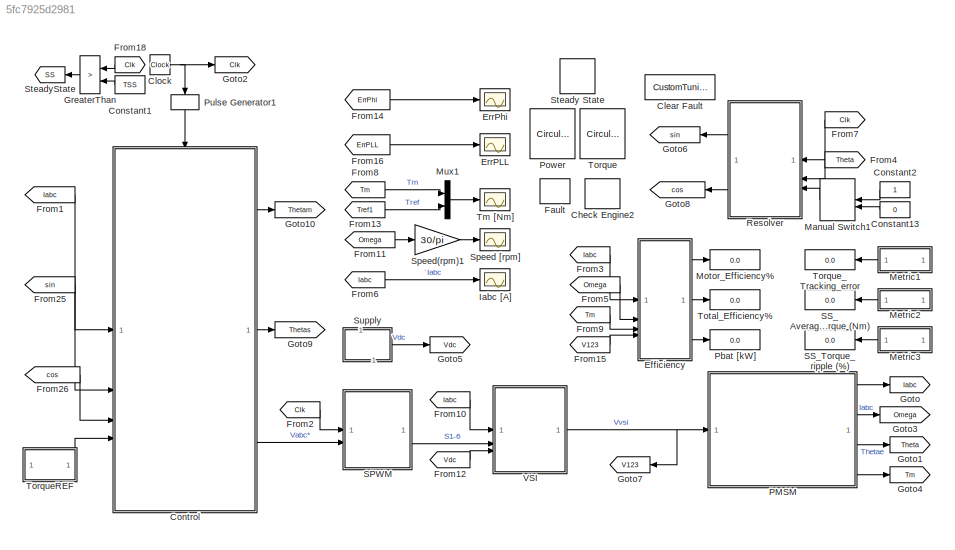
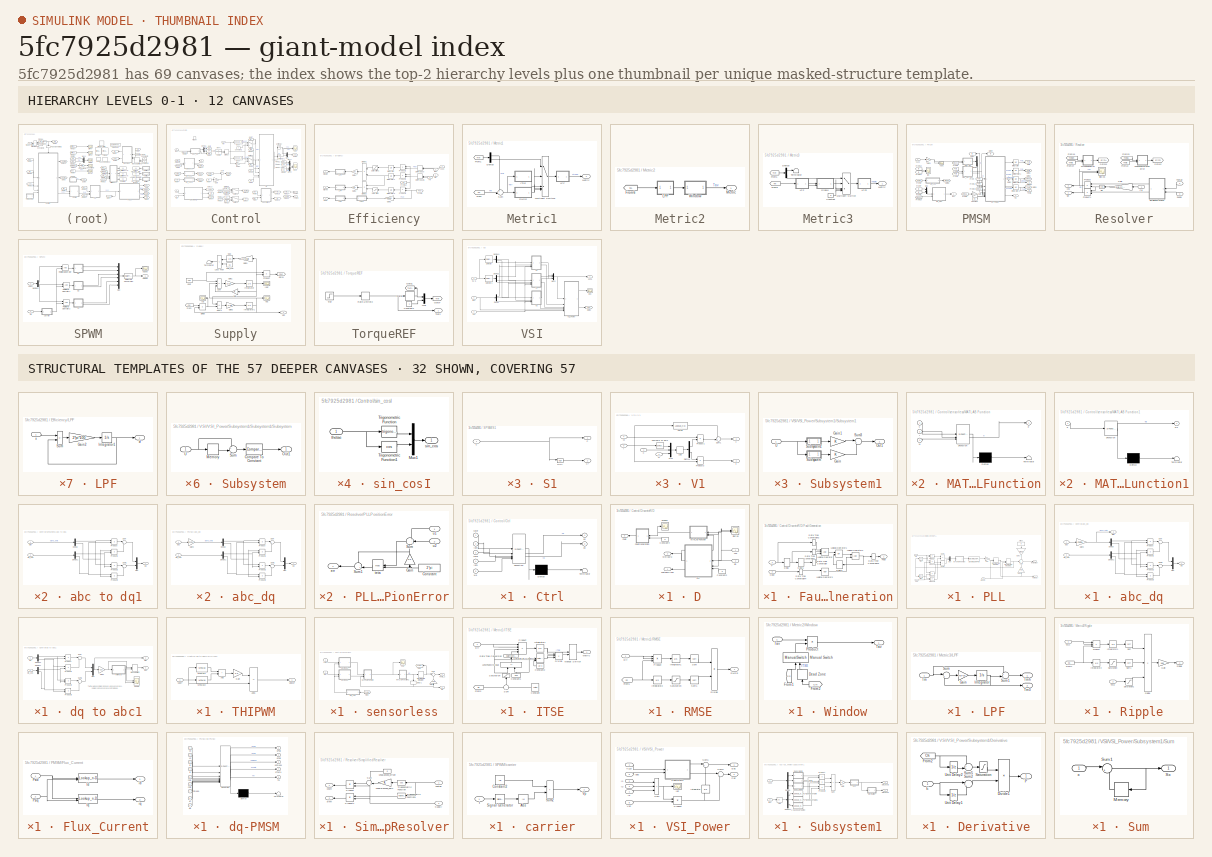
[diagram: thumbnail index - top-2 hierarchy levels (12 canvases) + 32 structural-template representatives of the remaining 57 canvases]
MODEL slx_5fc7925d2981
KIND model
CONFIG AbsTol = auto
CONFIG EnableMultiTasking = off
CONFIG FixedStep = Tsim
CONFIG MaxStep = Tsim
CONFIG MinStep = Tsim/100
CONFIG RelTol = 1e-3
CONFIG SampleTimeConstraint = Unconstrained
CONFIG SolverName = ode4
CONFIG StartTime = 0.0
CONFIG StopTime = Tf
BLOCK [Display]             SS_Average_Torque (Nm)
  Decimation = 1
BLOCK [Display]       Torque_Tracking_error
  Decimation = 1
BLOCK [Display]      SS_Torque_ripple (%)
  Decimation = 1
BLOCK [LampBlock] Check Engine2
  Icon = CheckEngine2
  LabelPosition = Hide
BLOCK [CustomTuningWebBlock] Clear Fault
  Configuration = {"components":[{"name":"BackgroundImageComponent","settings":{"image":{"size":[0,0],"src":"default","srcOrientation":"horizontal"},"position":[0,0,1,1],"scaleMode":"0"}},{"name":"ButtonStateComponent","settings":{"buttonType":"momentary","clickFcn":"","image":{"size":[180,45],"srcOrientation":"Right"},"latched":false,"offValue":[],"onValue":1,"position":[0,0,1,1],"pressDelay":500,"pressFcn":"","re...<+16095ch>
  LabelPosition = Hide
  NameLocation = top
  ShowInitialText = on
BLOCK [Clock] Clock
  Decimation = 1
  NameLocation = top
BLOCK [Constant] Constant1
  Value = TSS
BLOCK [Constant] Constant13
  Value = 0
BLOCK [Constant] Constant2
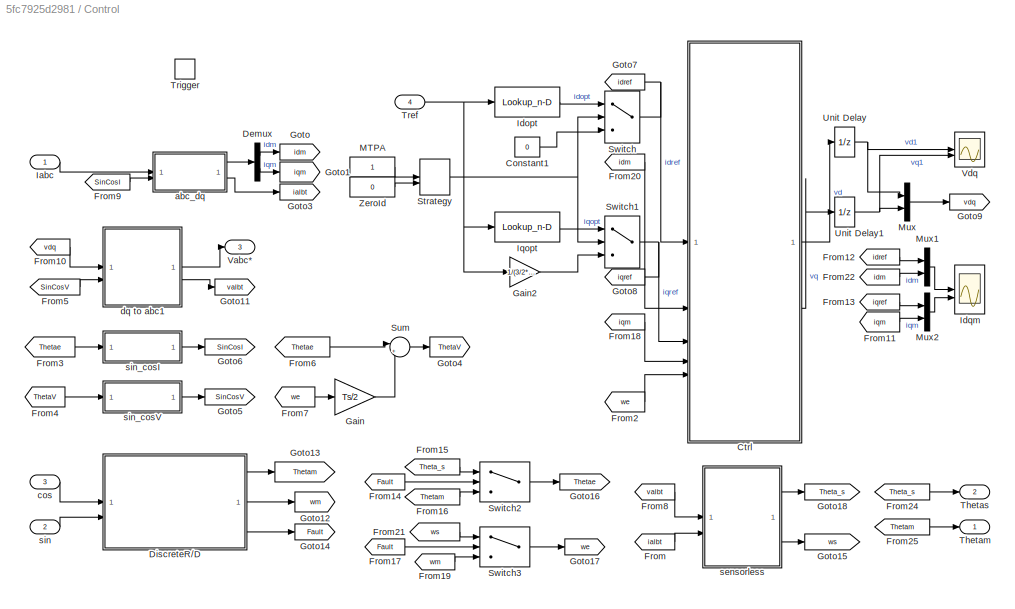
BLOCK [SubSystem] Control
BLOCK [Constant] Control/Constant1
  Value = 0
BLOCK [SubSystem] Control/Ctrl
  ErrorFcn = Stateflow.Translate.translate
  PermitHierarchicalResolution = ExplicitOnly
  SFBlockType = MATLAB Function
  TreatAsAtomicUnit = on
BLOCK [Demux] Control/Ctrl/ Demux 
  Outputs = 1
BLOCK [S-Function] Control/Ctrl/ SFunction 
  EnableBusSupport = on
  FunctionName = sf_sfun
  Parameters = Id0,Iq0,Kid,Kiq,Kpd,Kpq,Ld0,Lq0,Pp,Psif0,Rs0,Tm0,Ts,Ud0,Uq0,Vd0,Vq0
  PortCounts = [5 3]
  SFcnIsStateOwnerBlock = off
  SFunctionDeploymentMode = off
  Tag = Stateflow S-Function 4
BLOCK [Terminator] Control/Ctrl/ Terminator 
BLOCK [Inport] Control/Ctrl/idm
  Port = 2
BLOCK [Inport] Control/Ctrl/idref
BLOCK [Inport] Control/Ctrl/iqm
  Port = 4
BLOCK [Inport] Control/Ctrl/iqref
  Port = 3
BLOCK [Outport] Control/Ctrl/vd
BLOCK [Outport] Control/Ctrl/vq
  Port = 2
BLOCK [Inport] Control/Ctrl/we
  Port = 5
BLOCK [Demux] Control/Demux
  Outputs = 2
BLOCK [SubSystem] Control/DiscreteR//D
BLOCK [Constant] Control/DiscreteR//D/Constant2
  Value = 0
BLOCK [Constant] Control/DiscreteR//D/Constant4
  Value = 0
BLOCK [Outport] Control/DiscreteR//D/Fault
  Port = 3
BLOCK [SubSystem] Control/DiscreteR//D/FaultGeneration
BLOCK [Inport] Control/DiscreteR//D/FaultGeneration/Clear
  Port = 2
BLOCK [DataTypeConversion] Control/DiscreteR//D/FaultGeneration/Data Type Conversion
  RndMeth = Floor
  SaturateOnIntegerOverflow = off
BLOCK [DataTypeConversion] Control/DiscreteR//D/FaultGeneration/Data Type Conversion1
  RndMeth = Floor
  SaturateOnIntegerOverflow = off
BLOCK [DataTypeConversion] Control/DiscreteR//D/FaultGeneration/Data Type Conversion2
  RndMeth = Floor
  SaturateOnIntegerOverflow = off
BLOCK [DataTypeConversion] Control/DiscreteR//D/FaultGeneration/Data Type Conversion3
  RndMeth = Floor
  SaturateOnIntegerOverflow = off
BLOCK [DataTypeConversion] Control/DiscreteR//D/FaultGeneration/Data Type Conversion4
  RndMeth = Floor
  SaturateOnIntegerOverflow = off
BLOCK [Delay] Control/DiscreteR//D/FaultGeneration/Delay
  DelayLength = 1
  InputPortMap = u0
BLOCK [Delay] Control/DiscreteR//D/FaultGeneration/Delay1
  DelayLength = 1
  InputPortMap = u0
BLOCK [Delay] Control/DiscreteR//D/FaultGeneration/Delay2
  DelayLength = 1
  InputPortMap = u0
BLOCK [Inport] Control/DiscreteR//D/FaultGeneration/F
BLOCK [Outport] Control/DiscreteR//D/FaultGeneration/Fault
BLOCK [Logic] Control/DiscreteR//D/FaultGeneration/Logical Operator
  AllPortsSameDT = off
  Inputs = 3
  OutDataTypeStr = boolean
BLOCK [Logic] Control/DiscreteR//D/FaultGeneration/Logical Operator1
  AllPortsSameDT = off
  Operator = OR
  OutDataTypeStr = boolean
BLOCK [Logic] Control/DiscreteR//D/FaultGeneration/Logical Operator2
  AllPortsSameDT = off
  OutDataTypeStr = boolean
BLOCK [Logic] Control/DiscreteR//D/FaultGeneration/Logical Operator3
  AllPortsSameDT = off
  Operator = NOT
  OutDataTypeStr = boolean
BLOCK [SubSystem] Control/DiscreteR//D/MATLAB Function
  ErrorFcn = Stateflow.Translate.translate
  PermitHierarchicalResolution = ExplicitOnly
  SFBlockType = MATLAB Function
  TreatAsAtomicUnit = on
BLOCK [Demux] Control/DiscreteR//D/MATLAB Function/ Demux 
  Outputs = 1
BLOCK [S-Function] Control/DiscreteR//D/MATLAB Function/ SFunction 
  EnableBusSupport = on
  FunctionName = sf_sfun
  PortCounts = [3 2]
  SFcnIsStateOwnerBlock = off
  SFunctionDeploymentMode = off
  Tag = Stateflow S-Function 2
BLOCK [Terminator] Control/DiscreteR//D/MATLAB Function/ Terminator 
BLOCK [Outport] Control/DiscreteR//D/MATLAB Function/F
BLOCK [Inport] Control/DiscreteR//D/MATLAB Function/c
BLOCK [Inport] Control/DiscreteR//D/MATLAB Function/s
  Port = 2
BLOCK [Inport] Control/DiscreteR//D/MATLAB Function/w
  Port = 3
BLOCK [SubSystem] Control/DiscreteR//D/PLL
BLOCK [DiscreteZeroPole] Control/DiscreteR//D/PLL/Discrete Zero-Pole
  Gain = kpll
  Poles = ppll
  SampleTime = -1
  Zeros = zpll
BLOCK [DiscreteIntegrator] Control/DiscreteR//D/PLL/Discrete-Time Integrator
  ExternalReset = level
  ICPrevOutput = DiscIntNeverNeededParam
  ICPrevScaledInput = DiscIntNeverNeededParam
  InitialCondition = Pp*Wm0
  InitialConditionSetting = Auto
  SampleTime = -1
BLOCK [DiscreteIntegrator] Control/DiscreteR//D/PLL/Discrete-Time Integrator1
  ExternalReset = level
  ICPrevOutput = DiscIntNeverNeededParam
  ICPrevScaledInput = DiscIntNeverNeededParam
  InitialCondition = Thetae0
  InitialConditionSetting = Auto
  SampleTime = -1
BLOCK [Gain] Control/DiscreteR//D/PLL/Gain2
  Gain = pi/180
  NameLocation = right
  OutDataTypeStr = Inherit: Same as input
  ParamDataTypeStr = Inherit: Same as input
  SaturateOnIntegerOverflow = on
BLOCK [Gain] Control/DiscreteR//D/PLL/Gain3
  Gain = Ts/2
  NameLocation = right
BLOCK [Gain] Control/DiscreteR//D/PLL/Kpll
  Gain = Kpll
  NameLocation = top
BLOCK [SubSystem] Control/DiscreteR//D/PLL/MATLAB Function
  ErrorFcn = Stateflow.Translate.translate
  LibrarySourceBlock = simulink/User-Defined\nFunctions/MATLAB Function
  PermitHierarchicalResolution = ExplicitOnly
  SFBlockType = MATLAB Function
  TreatAsAtomicUnit = on
BLOCK [Demux] Control/DiscreteR//D/PLL/MATLAB Function/ Demux 
  Outputs = 1
BLOCK [S-Function] Control/DiscreteR//D/PLL/MATLAB Function/ SFunction 
  EnableBusSupport = on
  FunctionName = sf_sfun
  PortCounts = [1 2]
  SFcnIsStateOwnerBlock = off
  SFunctionDeploymentMode = off
  Tag = Stateflow S-Function 3
BLOCK [Terminator] Control/DiscreteR//D/PLL/MATLAB Function/ Terminator 
BLOCK [Inport] Control/DiscreteR//D/PLL/MATLAB Function/u
BLOCK [Outport] Control/DiscreteR//D/PLL/MATLAB Function/y
BLOCK [Mux] Control/DiscreteR//D/PLL/Mux
  DisplayOption = bar
  Inputs = 2
BLOCK [Product] Control/DiscreteR//D/PLL/Product
  OutDataTypeStr = Inherit: Same as first input
  SaturateOnIntegerOverflow = on
BLOCK [Product] Control/DiscreteR//D/PLL/Product1
  OutDataTypeStr = Inherit: Same as first input
  SaturateOnIntegerOverflow = on
BLOCK [Product] Control/DiscreteR//D/PLL/Product2
  OutDataTypeStr = Inherit: Same as first input
  SaturateOnIntegerOverflow = on
BLOCK [Product] Control/DiscreteR//D/PLL/Product3
  OutDataTypeStr = Inherit: Same as first input
  SaturateOnIntegerOverflow = on
BLOCK [Inport] Control/DiscreteR//D/PLL/Reset
  Port = 3
BLOCK [Sum] Control/DiscreteR//D/PLL/Sum
  Inputs = +++
  OutDataTypeStr = double
  SaturateOnIntegerOverflow = on
BLOCK [Sum] Control/DiscreteR//D/PLL/Sum1
  IconShape = rectangular
  Inputs = +-
  SaturateOnIntegerOverflow = on
BLOCK [Sum] Control/DiscreteR//D/PLL/Sum2
  IconShape = rectangular
  SaturateOnIntegerOverflow = on
BLOCK [Trigonometry] Control/DiscreteR//D/PLL/Trigo
  Operator = cos
BLOCK [Trigonometry] Control/DiscreteR//D/PLL/Trigo 
  NameLocation = top
BLOCK [Inport] Control/DiscreteR//D/PLL/cos
BLOCK [Constant] Control/DiscreteR//D/PLL/offset
  NameLocation = left
  Value = 0
BLOCK [Inport] Control/DiscreteR//D/PLL/sin
  Port = 2
BLOCK [Outport] Control/DiscreteR//D/PLL/thetae(rad)
  Port = 2
BLOCK [Outport] Control/DiscreteR//D/PLL/we(rad//s)
BLOCK [Scope] Control/DiscreteR//D/Scope1
  Floating = off
  NumInputPorts = 1
  ScopeSpecificationString = Simulink.scopes.TimeScopeBlockCfg('CurrentConfiguration', extmgr.ConfigurationSet(extmgr.Configuration('Core','General UI',true,'FigureColor',[1 1 1]),extmgr.Configuration('Core','Source UI',true),extmgr.Configuration('Sources','WiredSimulink',true,'DataLoggingVariableName','ScopeData5'),extmgr.Configuration('Visuals','Time Domain',true,'SerializedDisplays',{struct('MinYLimReal','-0.125','MaxYLimR...<+1681ch>
BLOCK [Scope] Control/DiscreteR//D/SinCos
  Floating = off
  NumInputPorts = 2
  ScopeSpecificationString = Simulink.scopes.TimeScopeBlockCfg('CurrentConfiguration', extmgr.ConfigurationSet(extmgr.Configuration('Core','General UI',true,'FigureColor',[1 1 1]),extmgr.Configuration('Core','Source UI',true),extmgr.Configuration('Sources','WiredSimulink',true,'DataLoggingVariableName','ScopeData3'),extmgr.Configuration('Visuals','Time Domain',true,'SerializedDisplays',{struct('MinYLimReal','-1.24753','MaxYLi...<+1559ch>
BLOCK [Outport] Control/DiscreteR//D/Thetaem(rad)
BLOCK [Inport] Control/DiscreteR//D/cos
BLOCK [Inport] Control/DiscreteR//D/sin
  Port = 2
BLOCK [Outport] Control/DiscreteR//D/we(rad//s)
  Port = 2
BLOCK [From] Control/From
  GotoTag = ialbt
BLOCK [From] Control/From10
  GotoTag = vdq
BLOCK [From] Control/From11
  GotoTag = iqm
BLOCK [From] Control/From12
  GotoTag = idref
BLOCK [From] Control/From13
  GotoTag = iqref
BLOCK [From] Control/From14
  GotoTag = Fault
BLOCK [From] Control/From15
  GotoTag = Theta_s
  TagVisibility = global
BLOCK [From] Control/From16
  GotoTag = Thetam
BLOCK [From] Control/From17
  GotoTag = Fault
BLOCK [From] Control/From18
  GotoTag = iqm
BLOCK [From] Control/From19
  GotoTag = wm
BLOCK [From] Control/From2
  GotoTag = we
BLOCK [From] Control/From20
  GotoTag = idm
BLOCK [From] Control/From21
  GotoTag = ws
  TagVisibility = global
BLOCK [From] Control/From22
  GotoTag = idm
BLOCK [From] Control/From24
  GotoTag = Theta_s
  TagVisibility = global
BLOCK [From] Control/From25
  GotoTag = Thetam
BLOCK [From] Control/From3
  GotoTag = Thetae
BLOCK [From] Control/From4
  GotoTag = ThetaV
BLOCK [From] Control/From5
  GotoTag = SinCosV
BLOCK [From] Control/From6
  GotoTag = Thetae
BLOCK [From] Control/From7
  GotoTag = we
BLOCK [From] Control/From8
  GotoTag = valbt
BLOCK [From] Control/From9
  GotoTag = SinCosI
BLOCK [Gain] Control/Gain
  Gain = Ts/2
BLOCK [Gain] Control/Gain2
  Gain = 1/(3/2*Pp*Psif0)
BLOCK [Goto] Control/Goto
  GotoTag = idm
BLOCK [Goto] Control/Goto1
  GotoTag = iqm
BLOCK [Goto] Control/Goto11
  GotoTag = valbt
BLOCK [Goto] Control/Goto12
  GotoTag = wm
BLOCK [Goto] Control/Goto13
  GotoTag = Thetam
BLOCK [Goto] Control/Goto14
  GotoTag = Fault
BLOCK [Goto] Control/Goto15
  GotoTag = ws
  TagVisibility = global
BLOCK [Goto] Control/Goto16
  GotoTag = Thetae
BLOCK [Goto] Control/Goto17
  GotoTag = we
BLOCK [Goto] Control/Goto18
  GotoTag = Theta_s
  TagVisibility = global
BLOCK [Goto] Control/Goto3
  GotoTag = ialbt
BLOCK [Goto] Control/Goto4
  GotoTag = ThetaV
BLOCK [Goto] Control/Goto5
  GotoTag = SinCosV
BLOCK [Goto] Control/Goto6
  GotoTag = SinCosI
BLOCK [Goto] Control/Goto7
  GotoTag = idref
BLOCK [Goto] Control/Goto8
  GotoTag = iqref
BLOCK [Goto] Control/Goto9
  GotoTag = vdq
BLOCK [Inport] Control/Iabc
BLOCK [Lookup_n-D] Control/Idopt
  BreakpointsForDimension1 = Tref
  InputPortMap = u0
  InternalRulePriority = Speed
  NumberOfTableDimensions = 1
  RndMeth = Simplest
  Table = Idopt
BLOCK [Scope] Control/Idqm
  Floating = off
  NumInputPorts = 2
  ScopeSpecificationString = Simulink.scopes.TimeScopeBlockCfg('CurrentConfiguration', extmgr.ConfigurationSet(extmgr.Configuration('Core','General UI',true,'FigureColor',[1 1 1]),extmgr.Configuration('Core','Source UI',true),extmgr.Configuration('Sources','WiredSimulink',true,'DataLoggingVariableName','ScopeData1'),extmgr.Configuration('Visuals','Time Domain',true,'SerializedDisplays',{struct('MinYLimReal','-60.93722','MaxYL...<+1974ch>
BLOCK [Lookup_n-D] Control/Iqopt
  BreakpointsForDimension1 = Tref
  InputPortMap = u0
  InternalRulePriority = Speed
  NumberOfTableDimensions = 1
  RndMeth = Simplest
  Table = Iqopt
BLOCK [Constant] Control/MTPA
  NameLocation = top
BLOCK [Mux] Control/Mux
  DisplayOption = bar
  Inputs = 2
BLOCK [Mux] Control/Mux1
  DisplayOption = bar
  Inputs = 2
BLOCK [Mux] Control/Mux2
  DisplayOption = bar
  Inputs = 2
BLOCK [ManualSwitch] Control/Strategy
BLOCK [Sum] Control/Sum
  Inputs = |++
BLOCK [Switch] Control/Switch
  Criteria = u2 > Threshold
  InputSameDT = off
  SaturateOnIntegerOverflow = off
  Threshold = 0.5
BLOCK [Switch] Control/Switch1
  Criteria = u2 > Threshold
  InputSameDT = off
  SaturateOnIntegerOverflow = off
  Threshold = 0.5
BLOCK [Switch] Control/Switch2
  Criteria = u2 > Threshold
  InputSameDT = off
  SaturateOnIntegerOverflow = off
  Threshold = 0.5
BLOCK [Switch] Control/Switch3
  Criteria = u2 > Threshold
  InputSameDT = off
  SaturateOnIntegerOverflow = off
  Threshold = 0.5
BLOCK [Outport] Control/Thetam
BLOCK [Outport] Control/Thetas
  Port = 2
BLOCK [Inport] Control/Tref
  Port = 4
BLOCK [TriggerPort] Control/Trigger
  PortDimensions = 1
  StatesWhenEnabling = held
  TriggerType = falling
  VariantControl = Variant
BLOCK [UnitDelay] Control/Unit Delay
  HasFrameUpgradeWarning = on
  InitialCondition = Vd0
  SampleTime = -1
BLOCK [UnitDelay] Control/Unit Delay1
  HasFrameUpgradeWarning = on
  InitialCondition = Vq0
  SampleTime = -1
BLOCK [Outport] Control/Vabc*
  Port = 3
BLOCK [Scope] Control/Vdq
  Floating = off
  NumInputPorts = 2
  ScopeSpecificationString = Simulink.scopes.TimeScopeBlockCfg('CurrentConfiguration', extmgr.ConfigurationSet(extmgr.Configuration('Core','General UI',true,'FigureColor',[1 1 1]),extmgr.Configuration('Core','Source UI',true),extmgr.Configuration('Sources','WiredSimulink',true,'DataLoggingVariableName','ScopeData2'),extmgr.Configuration('Visuals','Time Domain',true,'SerializedDisplays',{struct('MinYLimReal','-151.29097','MaxY...<+1706ch>
BLOCK [Constant] Control/ZeroId
  Value = 0
BLOCK [SubSystem] Control/abc_dq
BLOCK [Demux] Control/abc_dq/Demux
  DisplayOption = none
  Outputs = 2
BLOCK [Demux] Control/abc_dq/Demux1
  DisplayOption = none
  Outputs = 2
BLOCK [Gain] Control/abc_dq/Gain3
  Gain = C32inv
  Multiplication = Matrix(K*u)
  OutDataTypeStr = Inherit: Same as input
  ParamDataTypeStr = Inherit: Same as input
BLOCK [Mux] Control/abc_dq/Mux
  DisplayOption = bar
  Inputs = 2
BLOCK [Product] Control/abc_dq/Product
  InputSameDT = on
  OutDataTypeStr = Inherit: Same as first input
  RndMeth = Zero
  SaturateOnIntegerOverflow = on
BLOCK [Product] Control/abc_dq/Product1
  InputSameDT = on
  OutDataTypeStr = Inherit: Same as first input
  RndMeth = Zero
  SaturateOnIntegerOverflow = on
BLOCK [Product] Control/abc_dq/Product2
  InputSameDT = on
  OutDataTypeStr = Inherit: Same as first input
  RndMeth = Zero
  SaturateOnIntegerOverflow = on
BLOCK [Product] Control/abc_dq/Product3
  InputSameDT = on
  OutDataTypeStr = Inherit: Same as first input
  RndMeth = Zero
  SaturateOnIntegerOverflow = on
BLOCK [Sum] Control/abc_dq/Sum
  InputSameDT = on
  Inputs = |++
  OutDataTypeStr = Inherit: Same as first input
  SaturateOnIntegerOverflow = on
BLOCK [Sum] Control/abc_dq/Sum1
  InputSameDT = on
  Inputs = |-+
  OutDataTypeStr = Inherit: Same as first input
  SaturateOnIntegerOverflow = on
BLOCK [Inport] Control/abc_dq/abc
BLOCK [Outport] Control/abc_dq/dq
BLOCK [Outport] Control/abc_dq/ialbt
  Port = 2
BLOCK [Inport] Control/abc_dq/sin_cos
  Port = 2
BLOCK [Inport] Control/cos
  Port = 3
BLOCK [SubSystem] Control/dq to abc1
BLOCK [Demux] Control/dq to abc1/Demux1
  DisplayOption = none
  Outputs = 2
BLOCK [Demux] Control/dq to abc1/Demux2
  DisplayOption = none
  Outputs = 2
BLOCK [Gain] Control/dq to abc1/Gain1
  Gain = C32
  Multiplication = Matrix(K*u)
  OutDataTypeStr = Inherit: Same as input
  ParamDataTypeStr = Inherit: Same as input
BLOCK [ManualSwitch] Control/dq to abc1/Manual Switch
BLOCK [Mux] Control/dq to abc1/Mux
  DisplayOption = bar
  Inputs = 2
BLOCK [Product] Control/dq to abc1/Product
  InputSameDT = on
  OutDataTypeStr = Inherit: Same as first input
  RndMeth = Zero
  SaturateOnIntegerOverflow = on
BLOCK [Product] Control/dq to abc1/Product1
  InputSameDT = on
  OutDataTypeStr = Inherit: Same as first input
  RndMeth = Zero
  SaturateOnIntegerOverflow = on
BLOCK [Product] Control/dq to abc1/Product2
  InputSameDT = on
  OutDataTypeStr = Inherit: Same as first input
  RndMeth = Zero
  SaturateOnIntegerOverflow = on
BLOCK [Product] Control/dq to abc1/Product3
  InputSameDT = on
  OutDataTypeStr = Inherit: Same as first input
  RndMeth = Zero
  SaturateOnIntegerOverflow = on
BLOCK [Scope] Control/dq to abc1/Scope
  Floating = off
  NumInputPorts = 2
  ScopeSpecificationString = Simulink.scopes.TimeScopeBlockCfg('CurrentConfiguration', extmgr.ConfigurationSet(extmgr.Configuration('Core','General UI',true),extmgr.Configuration('Core','Source UI',true),extmgr.Configuration('Sources','WiredSimulink',true,'DataLoggingVariableName','ScopeData2'),extmgr.Configuration('Visuals','Time Domain',true,'SerializedDisplays',{struct('MinYLimReal','-432.15313','MaxYLimReal','432.52266','...<+1616ch>
BLOCK [Sum] Control/dq to abc1/Sum
  InputSameDT = on
  Inputs = |+-
  OutDataTypeStr = Inherit: Same as first input
  SaturateOnIntegerOverflow = on
BLOCK [Sum] Control/dq to abc1/Sum1
  InputSameDT = on
  Inputs = |++
  OutDataTypeStr = Inherit: Same as first input
  SaturateOnIntegerOverflow = on
BLOCK [SubSystem] Control/dq to abc1/THIPWM
BLOCK [Sum] Control/dq to abc1/THIPWM/Add
  IconShape = rectangular
BLOCK [Sum] Control/dq to abc1/THIPWM/Add1
  IconShape = rectangular
  Inputs = -+
BLOCK [Gain] Control/dq to abc1/THIPWM/Gain
  Gain = 0.5
BLOCK [MinMax] Control/dq to abc1/THIPWM/MinMax1
  InputSameDT = on
  SaturateOnIntegerOverflow = on
BLOCK [MinMax] Control/dq to abc1/THIPWM/MinMax2
  Function = max
  InputSameDT = on
  SaturateOnIntegerOverflow = on
BLOCK [Inport] Control/dq to abc1/THIPWM/Vabc*
BLOCK [Outport] Control/dq to abc1/THIPWM/Vabc3*
BLOCK [Outport] Control/dq to abc1/abc
BLOCK [Outport] Control/dq to abc1/albt
  Port = 2
BLOCK [Inport] Control/dq to abc1/dq
BLOCK [Inport] Control/dq to abc1/sin_cos
  Port = 2
BLOCK [SubSystem] Control/sensorless
BLOCK [Delay] Control/sensorless/Delay1
  DelayLength = 1
  InitialCondition = 0
  InputPortMap = u0
  NameLocation = right
BLOCK [DiscreteIntegrator] Control/sensorless/Discrete-Time Integrator
  ICPrevOutput = DiscIntNeverNeededParam
  ICPrevScaledInput = DiscIntNeverNeededParam
  InitialConditionSetting = Auto
  SampleTime = -1
  gainval = 1
BLOCK [From] Control/sensorless/From
  GotoTag = Thetas
BLOCK [Gain] Control/sensorless/Gain
  Gain = Ts/2
  NameLocation = left
BLOCK [Goto] Control/sensorless/Goto
  GotoTag = Thetas
BLOCK [SubSystem] Control/sensorless/MATLAB Function
  ErrorFcn = Stateflow.Translate.translate
  PermitHierarchicalResolution = ExplicitOnly
  SFBlockType = MATLAB Function
  TreatAsAtomicUnit = on
BLOCK [Demux] Control/sensorless/MATLAB Function/ Demux 
  Outputs = 1
BLOCK [S-Function] Control/sensorless/MATLAB Function/ SFunction 
  EnableBusSupport = on
  FunctionName = sf_sfun
  Parameters = Ld0,Lq0,Psif0,Rs0,Thetae0,we0
  PortCounts = [3 2]
  SFcnIsStateOwnerBlock = off
  SFunctionDeploymentMode = off
  Tag = Stateflow S-Function 5
BLOCK [Terminator] Control/sensorless/MATLAB Function/ Terminator 
BLOCK [Outport] Control/sensorless/MATLAB Function/e
BLOCK [Inport] Control/sensorless/MATLAB Function/i
  Port = 2
BLOCK [Inport] Control/sensorless/MATLAB Function/v
BLOCK [Inport] Control/sensorless/MATLAB Function/w
  Port = 3
BLOCK [SubSystem] Control/sensorless/MATLAB Function1
  ErrorFcn = Stateflow.Translate.translate
  PermitHierarchicalResolution = ExplicitOnly
  SFBlockType = MATLAB Function
  TreatAsAtomicUnit = on
BLOCK [Demux] Control/sensorless/MATLAB Function1/ Demux 
  Outputs = 1
BLOCK [S-Function] Control/sensorless/MATLAB Function1/ SFunction 
  EnableBusSupport = on
  FunctionName = sf_sfun
  Parameters = Psif0,b,ksi
  PortCounts = [1 2]
  SFcnIsStateOwnerBlock = off
  SFunctionDeploymentMode = off
  Tag = Stateflow S-Function 6
BLOCK [Terminator] Control/sensorless/MATLAB Function1/ Terminator 
BLOCK [Inport] Control/sensorless/MATLAB Function1/e
BLOCK [Outport] Control/sensorless/MATLAB Function1/ws
BLOCK [Sum] Control/sensorless/Sum
  Inputs = |++
BLOCK [Outport] Control/sensorless/Theta_s
BLOCK [SubSystem] Control/sensorless/abc to dq1
BLOCK [Demux] Control/sensorless/abc to dq1/Demux
  DisplayOption = none
  Outputs = 2
BLOCK [Demux] Control/sensorless/abc to dq1/Demux1
  DisplayOption = none
  Outputs = 2
BLOCK [Mux] Control/sensorless/abc to dq1/Mux
  DisplayOption = bar
  Inputs = 2
BLOCK [Product] Control/sensorless/abc to dq1/Product
  InputSameDT = on
  OutDataTypeStr = Inherit: Same as first input
  RndMeth = Zero
  SaturateOnIntegerOverflow = on
BLOCK [Product] Control/sensorless/abc to dq1/Product1
  InputSameDT = on
  OutDataTypeStr = Inherit: Same as first input
  RndMeth = Zero
  SaturateOnIntegerOverflow = on
BLOCK [Product] Control/sensorless/abc to dq1/Product2
  InputSameDT = on
  OutDataTypeStr = Inherit: Same as first input
  RndMeth = Zero
  SaturateOnIntegerOverflow = on
BLOCK [Product] Control/sensorless/abc to dq1/Product3
  InputSameDT = on
  OutDataTypeStr = Inherit: Same as first input
  RndMeth = Zero
  SaturateOnIntegerOverflow = on
BLOCK [Sum] Control/sensorless/abc to dq1/Sum
  InputSameDT = on
  Inputs = |++
  OutDataTypeStr = Inherit: Same as first input
  SaturateOnIntegerOverflow = on
BLOCK [Sum] Control/sensorless/abc to dq1/Sum1
  InputSameDT = on
  Inputs = |-+
  OutDataTypeStr = Inherit: Same as first input
  SaturateOnIntegerOverflow = on
BLOCK [Inport] Control/sensorless/abc to dq1/albt 
BLOCK [Outport] Control/sensorless/abc to dq1/dq
BLOCK [Inport] Control/sensorless/abc to dq1/sin_cos
  Port = 2
BLOCK [SubSystem] Control/sensorless/abc to dq2
BLOCK [Demux] Control/sensorless/abc to dq2/Demux
  DisplayOption = none
  Outputs = 2
BLOCK [Demux] Control/sensorless/abc to dq2/Demux1
  DisplayOption = none
  Outputs = 2
BLOCK [Mux] Control/sensorless/abc to dq2/Mux
  DisplayOption = bar
  Inputs = 2
BLOCK [Product] Control/sensorless/abc to dq2/Product
  InputSameDT = on
  OutDataTypeStr = Inherit: Same as first input
  RndMeth = Zero
  SaturateOnIntegerOverflow = on
BLOCK [Product] Control/sensorless/abc to dq2/Product1
  InputSameDT = on
  OutDataTypeStr = Inherit: Same as first input
  RndMeth = Zero
  SaturateOnIntegerOverflow = on
BLOCK [Product] Control/sensorless/abc to dq2/Product2
  InputSameDT = on
  OutDataTypeStr = Inherit: Same as first input
  RndMeth = Zero
  SaturateOnIntegerOverflow = on
BLOCK [Product] Control/sensorless/abc to dq2/Product3
  InputSameDT = on
  OutDataTypeStr = Inherit: Same as first input
  RndMeth = Zero
  SaturateOnIntegerOverflow = on
BLOCK [Sum] Control/sensorless/abc to dq2/Sum
  InputSameDT = on
  Inputs = |++
  OutDataTypeStr = Inherit: Same as first input
  SaturateOnIntegerOverflow = on
BLOCK [Sum] Control/sensorless/abc to dq2/Sum1
  InputSameDT = on
  Inputs = |-+
  OutDataTypeStr = Inherit: Same as first input
  SaturateOnIntegerOverflow = on
BLOCK [Inport] Control/sensorless/abc to dq2/albt 
BLOCK [Outport] Control/sensorless/abc to dq2/dq
BLOCK [Inport] Control/sensorless/abc to dq2/sin_cos
  Port = 2
BLOCK [Scope] Control/sensorless/edg
  Floating = off
  NumInputPorts = 1
  ScopeSpecificationString = Simulink.scopes.TimeScopeBlockCfg('CurrentConfiguration', extmgr.ConfigurationSet(extmgr.Configuration('Core','General UI',true,'FigureColor',[1 1 1]),extmgr.Configuration('Core','Source UI',true),extmgr.Configuration('Sources','WiredSimulink',true,'DataLoggingVariableName','ScopeData1'),extmgr.Configuration('Visuals','Time Domain',true,'SerializedDisplays',{struct('MinYLimReal','-43.55922','MaxYL...<+1791ch>
BLOCK [Inport] Control/sensorless/ialbt
  Port = 2
BLOCK [SubSystem] Control/sensorless/sin_cos
BLOCK [Mux] Control/sensorless/sin_cos/Mux1
  DisplayOption = bar
  Inputs = 2
BLOCK [Trigonometry] Control/sensorless/sin_cos/Trigonometric Function
BLOCK [Trigonometry] Control/sensorless/sin_cos/Trigonometric Function1
  Operator = cos
BLOCK [Outport] Control/sensorless/sin_cos/sin_cos
BLOCK [Inport] Control/sensorless/sin_cos/thetae
BLOCK [Inport] Control/sensorless/valbt
BLOCK [Outport] Control/sensorless/ws
  Port = 2
BLOCK [Inport] Control/sin
  Port = 2
BLOCK [SubSystem] Control/sin_cosI
BLOCK [Mux] Control/sin_cosI/Mux1
  DisplayOption = bar
  Inputs = 2
BLOCK [Trigonometry] Control/sin_cosI/Trigonometric Function
BLOCK [Trigonometry] Control/sin_cosI/Trigonometric Function1
  Operator = cos
BLOCK [Outport] Control/sin_cosI/sin_cos
BLOCK [Inport] Control/sin_cosI/thetae
BLOCK [SubSystem] Control/sin_cosV
BLOCK [Mux] Control/sin_cosV/Mux1
  DisplayOption = bar
  Inputs = 2
BLOCK [Trigonometry] Control/sin_cosV/Trigonometric Function
BLOCK [Trigonometry] Control/sin_cosV/Trigonometric Function1
  Operator = cos
BLOCK [Outport] Control/sin_cosV/sin_cos
BLOCK [Inport] Control/sin_cosV/thetae
BLOCK [SubSystem] Efficiency
BLOCK [Product] Efficiency/Divide1
  Inputs = /*
BLOCK [Product] Efficiency/Divide2
  Inputs = */
BLOCK [DotProduct] Efficiency/Dot Product
  OutDataTypeStr = Inherit: Inherit via internal rule
BLOCK [DotProduct] Efficiency/Dot Product1
  OutDataTypeStr = Inherit: Inherit via internal rule
BLOCK [From] Efficiency/From1
  GotoTag = Pbat
  TagVisibility = global
BLOCK [From] Efficiency/From18
  GotoTag = SS
  TagVisibility = global
BLOCK [Gain] Efficiency/Gain1
  Gain = 100
BLOCK [Gain] Efficiency/Gain2
  Gain = 100
BLOCK [Gain] Efficiency/Gain3
  Gain = 1/1000
BLOCK [Inport] Efficiency/Iabc
BLOCK [Integrator] Efficiency/Integrator
  InitialCondition = 1
BLOCK [Integrator] Efficiency/Integrator1
BLOCK [Integrator] Efficiency/Integrator3
  InitialCondition = 1
BLOCK [SubSystem] Efficiency/LPF
BLOCK [SubSystem] Efficiency/LPF 
BLOCK [SubSystem] Efficiency/LPF  
BLOCK [Gain] Efficiency/LPF  /Gain2
  Gain = 2*pi*10
BLOCK [Integrator] Efficiency/LPF  /Integrator1
  InitialCondition = Pe0/1000
BLOCK [Sum] Efficiency/LPF  /Sum
  IconShape = rectangular
  Inputs = +-
BLOCK [Inport] Efficiency/LPF  /x
BLOCK [Outport] Efficiency/LPF  /xf
BLOCK [Gain] Efficiency/LPF /Gain2
  Gain = 2*pi*100
BLOCK [Integrator] Efficiency/LPF /Integrator1
BLOCK [Sum] Efficiency/LPF /Sum
  IconShape = rectangular
  Inputs = +-
BLOCK [Inport] Efficiency/LPF /x
BLOCK [Outport] Efficiency/LPF /xf
BLOCK [SubSystem] Efficiency/LPF 1
BLOCK [Gain] Efficiency/LPF 1/Gain2
  Gain = 2*pi*3000
BLOCK [Integrator] Efficiency/LPF 1/Integrator1
  InitialCondition = Pe0/1000
BLOCK [Sum] Efficiency/LPF 1/Sum
  IconShape = rectangular
  Inputs = +-
BLOCK [Inport] Efficiency/LPF 1/x
BLOCK [Outport] Efficiency/LPF 1/xf
BLOCK [Gain] Efficiency/LPF/Gain2
  Gain = 2*pi*100
BLOCK [Integrator] Efficiency/LPF/Integrator1
BLOCK [Sum] Efficiency/LPF/Sum
  IconShape = rectangular
  Inputs = +-
BLOCK [Inport] Efficiency/LPF/x
BLOCK [Outport] Efficiency/LPF/xf
BLOCK [Outport] Efficiency/Pbat
  Port = 3
BLOCK [Product] Efficiency/Product1
BLOCK [Product] Efficiency/Product2
BLOCK [Product] Efficiency/Product3
BLOCK [Saturate] Efficiency/Saturation
  LowerLimit = 1
  UpperLimit = inf
BLOCK [Saturate] Efficiency/Saturation1
  LowerLimit = 1
  UpperLimit = inf
BLOCK [Inport] Efficiency/Tm
  Port = 3
BLOCK [Inport] Efficiency/V123
  Port = 4
BLOCK [Inport] Efficiency/Wm
  Port = 2
BLOCK [Outport] Efficiency/etaMot
BLOCK [Outport] Efficiency/etaTot
  Port = 2
BLOCK [Scope] ErrPLL
  Floating = off
  NumInputPorts = 1
  ScopeSpecificationString = Simulink.scopes.TimeScopeBlockCfg('CurrentConfiguration', extmgr.ConfigurationSet(extmgr.Configuration('Core','General UI',true,'FigureColor',[1 1 1]),extmgr.Configuration('Core','Source UI',true),extmgr.Configuration('Sources','WiredSimulink',true,'DataLoggingVariableName','ScopeData1'),extmgr.Configuration('Visuals','Time Domain',true,'SerializedDisplays',{struct('MinYLimReal','-3.92699','MaxYLi...<+1600ch>
BLOCK [Scope] ErrPhi
  Floating = off
  NumInputPorts = 1
  ScopeSpecificationString = Simulink.scopes.TimeScopeBlockCfg('CurrentConfiguration', extmgr.ConfigurationSet(extmgr.Configuration('Core','General UI',true,'FigureColor',[1 1 1]),extmgr.Configuration('Core','Source UI',true),extmgr.Configuration('Sources','WiredSimulink',true,'DataLoggingVariableName','ScopeData2'),extmgr.Configuration('Visuals','Time Domain',true,'SerializedDisplays',{struct('MinYLimReal','-3.9189','MaxYLim...<+1597ch>
BLOCK [LampBlock] Fault
  Icon = TireMonitor
  LabelPosition = Hide
BLOCK [From] From1
  GotoTag = Iabc
BLOCK [From] From10
  GotoTag = Iabc
BLOCK [From] From11
  GotoTag = Omega
BLOCK [From] From12
  GotoTag = Vdc
BLOCK [From] From13
  GotoTag = Tref1
  TagVisibility = global
BLOCK [From] From14
  GotoTag = ErrPhi
  TagVisibility = global
BLOCK [From] From15
  GotoTag = V123
BLOCK [From] From16
  GotoTag = ErrPLL
  TagVisibility = global
BLOCK [From] From18
  GotoTag = Clk
  TagVisibility = global
BLOCK [From] From2
  GotoTag = Clk
  TagVisibility = global
BLOCK [From] From25
  GotoTag = sin
BLOCK [From] From26
  GotoTag = cos
BLOCK [From] From3
  GotoTag = Iabc
BLOCK [From] From4
  GotoTag = Theta
  TagVisibility = global
BLOCK [From] From5
  GotoTag = Omega
BLOCK [From] From6
  GotoTag = Iabc
BLOCK [From] From7
  GotoTag = Clk
  TagVisibility = global
BLOCK [From] From8
  GotoTag = Tm
  TagVisibility = global
BLOCK [From] From9
  GotoTag = Tm
  TagVisibility = global
BLOCK [Goto] Goto
  GotoTag = Iabc
BLOCK [Goto] Goto1
  GotoTag = Theta
  TagVisibility = global
BLOCK [Goto] Goto10
  GotoTag = Thetam
  TagVisibility = global
BLOCK [Goto] Goto2
  GotoTag = Clk
  TagVisibility = global
BLOCK [Goto] Goto3
  GotoTag = Omega
BLOCK [Goto] Goto4
  GotoTag = Tm
  TagVisibility = global
BLOCK [Goto] Goto5
  GotoTag = Vdc
BLOCK [Goto] Goto6
  GotoTag = sin
BLOCK [Goto] Goto7
  GotoTag = V123
BLOCK [Goto] Goto8
  GotoTag = cos
BLOCK [Goto] Goto9
  GotoTag = Thetas
  TagVisibility = global
BLOCK [RelationalOperator] GreaterThan
  InputSameDT = off
  Operator = >
  RndMeth = Simplest
BLOCK [Scope] Iabc [A]
  Floating = off
  NumInputPorts = 1
  ScopeSpecificationString = Simulink.scopes.TimeScopeBlockCfg('CurrentConfiguration', extmgr.ConfigurationSet(extmgr.Configuration('Core','General UI',true,'FigureColor',[1 1 1]),extmgr.Configuration('Core','Source UI',true),extmgr.Configuration('Sources','WiredSimulink',true,'DataLoggingVariableName','ScopeData2','DataLogging',true,'DataLoggingSaveFormat','StructureWithTime'),extmgr.Configuration('Visuals','Time Domain',tru...<+1983ch>
BLOCK [ManualSwitch] Manual Switch1
BLOCK [SubSystem] Metric1
BLOCK [Demux] Metric1/Demux
  Outputs = 2
BLOCK [From] Metric1/From
  GotoTag = Tm
  TagVisibility = global
BLOCK [From] Metric1/From1
  GotoTag = Tref
  TagVisibility = global
BLOCK [SubSystem] Metric1/ITSE
BLOCK [Constant] Metric1/ITSE/Constant
  Value = Tstep
BLOCK [Constant] Metric1/ITSE/Constant1
  NameLocation = left
  Value = 0.03
BLOCK [Constant] Metric1/ITSE/Constant2
  NameLocation = top
  Value = 1e-3
BLOCK [DataTypeConversion] Metric1/ITSE/Data Type Conversion
  NameLocation = left
  RndMeth = Floor
  SaturateOnIntegerOverflow = off
BLOCK [Product] Metric1/ITSE/Divide
  Inputs = *//
BLOCK [Inport] Metric1/ITSE/Err
BLOCK [From] Metric1/ITSE/From2
  GotoTag = Clk
  TagVisibility = global
BLOCK [Integrator] Metric1/ITSE/Integrator1
BLOCK [RelationalOperator] Metric1/ITSE/LessThanOrEqual
  InputSameDT = off
  NameLocation = left
  Operator = <=
  OutDataTypeStr = boolean
  RndMeth = Simplest
BLOCK [ManualSwitch] Metric1/ITSE/Manual Switch
  CurrentSetting = 0
BLOCK [Outport] Metric1/ITSE/Metric
BLOCK [Product] Metric1/ITSE/Product
  Inputs = 4
BLOCK [Saturate] Metric1/ITSE/Saturation
  LowerLimit = 0
  NameLocation = right
  UpperLimit = inf
BLOCK [Reference] Metric1/ITSE/Saturation Dynamic  REF=simulink/Discontinuities/Saturation
Dynamic
  SourceBlock = simulink/Discontinuities/Saturation\nDynamic
  SourceType = Saturation Dynamic
BLOCK [Sum] Metric1/ITSE/Sum
  Inputs = +|-
  NameLocation = left
BLOCK [SubSystem] Metric1/LPF
BLOCK [Gain] Metric1/LPF/Gain
  Gain = 2*pi*10
BLOCK [Integrator] Metric1/LPF/Integrator
BLOCK [Sum] Metric1/LPF/Sum
  Inputs = |+-
BLOCK [Inport] Metric1/LPF/x
BLOCK [Outport] Metric1/LPF/xf
BLOCK [Outport] Metric1/Metric 
BLOCK [MultiPortSwitch] Metric1/Multiport Switch1
  DataPortOrder = Zero-based contiguous
  InputSameDT = off
  Inputs = 4
  SaturateOnIntegerOverflow = off
  zeroidx = on
BLOCK [SubSystem] Metric1/RMSE
BLOCK [Product] Metric1/RMSE/Divide
  Inputs = */
BLOCK [Inport] Metric1/RMSE/Err
BLOCK [From] Metric1/RMSE/From1
  GotoTag = SS
  NameLocation = top
  TagVisibility = global
BLOCK [Integrator] Metric1/RMSE/Integrator1
BLOCK [Integrator] Metric1/RMSE/Integrator2
BLOCK [Product] Metric1/RMSE/Product
  Inputs = 3
BLOCK [Outport] Metric1/RMSE/RMSE
BLOCK [Saturate] Metric1/RMSE/Saturation
  LowerLimit = 1e-3
  UpperLimit = inf
BLOCK [Sqrt] Metric1/RMSE/Sqrt
BLOCK [Sqrt] Metric1/RMSE/Sqrt1
BLOCK [Sum] Metric1/Sum
  Inputs = +-|
BLOCK [SubSystem] Metric2
BLOCK [From] Metric2/From6
  GotoTag = Tm
  TagVisibility = global
BLOCK [SubSystem] Metric2/LPF
BLOCK [Gain] Metric2/LPF/Gain
  Gain = 2*pi*10
BLOCK [Integrator] Metric2/LPF/Integrator
  InitialCondition = Tm0
BLOCK [Sum] Metric2/LPF/Sum
  Inputs = |+-
BLOCK [Outport] Metric2/LPF/Tav
BLOCK [Inport] Metric2/LPF/Tm
BLOCK [Outport] Metric2/Metric
BLOCK [SubSystem] Metric2/Window
BLOCK [DeadZone] Metric2/Window/Dead Zone
  LowerValue = -inf
  NameLocation = left
  UpperValue = Tstep
BLOCK [From] Metric2/Window/From1
  GotoTag = SS
  NameLocation = left
  TagVisibility = global
BLOCK [From] Metric2/Window/From2
  GotoTag = Clk
  TagVisibility = global
BLOCK [ManualSwitch] Metric2/Window/Manual Switch
  NameLocation = left
BLOCK [Product] Metric2/Window/Product
BLOCK [Outport] Metric2/Window/Tav
BLOCK [Inport] Metric2/Window/Tav 
BLOCK [SubSystem] Metric3
BLOCK [Constant] Metric3/Constant
  Value = 0
BLOCK [Demux] Metric3/Demux
  Outputs = 2
BLOCK [From] Metric3/From1
  GotoTag = Tref
  TagVisibility = global
BLOCK [From] Metric3/From6
  GotoTag = Tm
  TagVisibility = global
BLOCK [SubSystem] Metric3/LPF
BLOCK [Gain] Metric3/LPF/Gain
  Gain = 2*pi*30
BLOCK [Integrator] Metric3/LPF/Integrator
  InitialCondition = Tm0
BLOCK [Sum] Metric3/LPF/Sum
  Inputs = |+-
BLOCK [Sum] Metric3/LPF/Sum1
  Inputs = +-|
BLOCK [Inport] Metric3/LPF/Tm
BLOCK [Outport] Metric3/LPF/Tm0
  Port = 2
BLOCK [Outport] Metric3/LPF/Tmh
BLOCK [SubSystem] Metric3/LPF2
BLOCK [Gain] Metric3/LPF2/Gain
  Gain = 2*pi*10
BLOCK [Integrator] Metric3/LPF2/Integrator
BLOCK [Sum] Metric3/LPF2/Sum
  Inputs = |+-
BLOCK [Inport] Metric3/LPF2/x
BLOCK [Outport] Metric3/LPF2/xf
BLOCK [Outport] Metric3/Metric
BLOCK [MultiPortSwitch] Metric3/Multiport Switch
  DataPortOrder = Zero-based contiguous
  InputSameDT = off
  Inputs = 4
  SaturateOnIntegerOverflow = off
  zeroidx = on
BLOCK [SubSystem] Metric3/Ripple
BLOCK [Product] Metric3/Ripple/Divide
  Inputs = *//
BLOCK [From] Metric3/Ripple/From1
  GotoTag = SS
  NameLocation = top
  TagVisibility = global
BLOCK [Gain] Metric3/Ripple/Gain
  Gain = 100
BLOCK [Integrator] Metric3/Ripple/Integrator1
BLOCK [Integrator] Metric3/Ripple/Integrator2
BLOCK [Product] Metric3/Ripple/Product
  Inputs = 3
BLOCK [Outport] Metric3/Ripple/Ripple
BLOCK [Saturate] Metric3/Ripple/Saturation
  LowerLimit = 1e-3
  UpperLimit = inf
BLOCK [Saturate] Metric3/Ripple/Saturation1
  LowerLimit = 1e-3
  UpperLimit = inf
BLOCK [Sqrt] Metric3/Ripple/Sqrt
BLOCK [Sqrt] Metric3/Ripple/Sqrt1
BLOCK [Inport] Metric3/Ripple/Tm0
  Port = 2
BLOCK [Inport] Metric3/Ripple/Tmh
BLOCK [Terminator] Metric3/Terminator
BLOCK [Display] Motor_Efficiency%
  Decimation = 1
BLOCK [Mux] Mux1
  DisplayOption = bar
  Inputs = 2
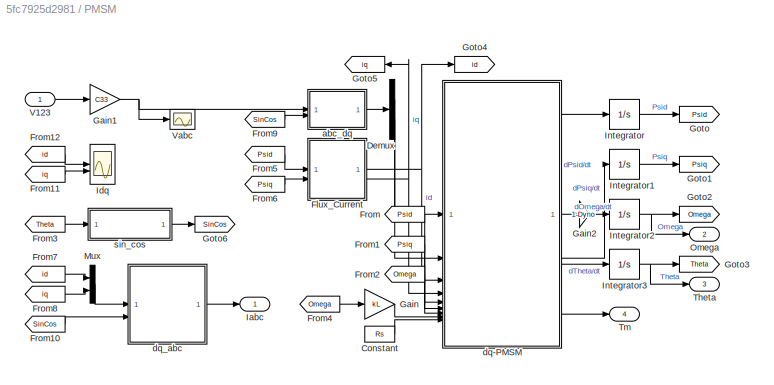
BLOCK [SubSystem] PMSM
BLOCK [Constant] PMSM/Constant
  Value = Rs
BLOCK [Demux] PMSM/Demux
  Outputs = 2
BLOCK [SubSystem] PMSM/Flux_Current
BLOCK [Lookup_n-D] PMSM/Flux_Current/Id
  BreakpointsForDimension1 = Psidv
  BreakpointsForDimension2 = Psiqv
  InputPortMap = u0,u1
  InternalRulePriority = Speed
  RndMeth = Simplest
  Table = Idd
BLOCK [Lookup_n-D] PMSM/Flux_Current/Iq
  BreakpointsForDimension1 = Psidv
  BreakpointsForDimension2 = Psiqv
  InputPortMap = u0,u1
  InternalRulePriority = Speed
  RndMeth = Simplest
  Table = Iqq
BLOCK [Inport] PMSM/Flux_Current/Psid
BLOCK [Inport] PMSM/Flux_Current/Psiq
  Port = 2
BLOCK [Outport] PMSM/Flux_Current/id
BLOCK [Outport] PMSM/Flux_Current/iq
  Port = 2
BLOCK [From] PMSM/From
  GotoTag = Psid
BLOCK [From] PMSM/From1
  GotoTag = Psiq
BLOCK [From] PMSM/From10
  GotoTag = SinCos
BLOCK [From] PMSM/From11
  GotoTag = iq
BLOCK [From] PMSM/From12
  GotoTag = id
BLOCK [From] PMSM/From2
  GotoTag = Omega
BLOCK [From] PMSM/From3
  GotoTag = Theta
BLOCK [From] PMSM/From4
  GotoTag = Omega
BLOCK [From] PMSM/From5
  GotoTag = Psid
BLOCK [From] PMSM/From6
  GotoTag = Psiq
BLOCK [From] PMSM/From7
  GotoTag = id
BLOCK [From] PMSM/From8
  GotoTag = iq
BLOCK [From] PMSM/From9
  GotoTag = SinCos
BLOCK [Gain] PMSM/Gain
  Gain = kL
BLOCK [Gain] PMSM/Gain1
  Gain = C33
  Multiplication = Matrix(K*u)
BLOCK [Gain] PMSM/Gain2
  Gain = 1-Dyno
BLOCK [Goto] PMSM/Goto
  GotoTag = Psid
BLOCK [Goto] PMSM/Goto1
  GotoTag = Psiq
BLOCK [Goto] PMSM/Goto2
  GotoTag = Omega
BLOCK [Goto] PMSM/Goto3
  GotoTag = Theta
BLOCK [Goto] PMSM/Goto4
  GotoTag = id
BLOCK [Goto] PMSM/Goto5
  GotoTag = iq
BLOCK [Goto] PMSM/Goto6
  GotoTag = SinCos
BLOCK [Outport] PMSM/Iabc
BLOCK [Scope] PMSM/Idq
  Floating = off
  NumInputPorts = 2
  ScopeSpecificationString = Simulink.scopes.TimeScopeBlockCfg('CurrentConfiguration', extmgr.ConfigurationSet(extmgr.Configuration('Core','General UI',true,'FigureColor',[1 1 1]),extmgr.Configuration('Core','Source UI',true),extmgr.Configuration('Sources','WiredSimulink',true,'DataLoggingVariableName','ScopeData2'),extmgr.Configuration('Visuals','Time Domain',true,'SerializedDisplays',{struct('MinYLimReal','-539.8718','MaxYL...<+1826ch>
BLOCK [Integrator] PMSM/Integrator
  InitialCondition = Psid0
BLOCK [Integrator] PMSM/Integrator1
  InitialCondition = Psiq0
BLOCK [Integrator] PMSM/Integrator2
  InitialCondition = Wm0
BLOCK [Integrator] PMSM/Integrator3
  InitialCondition = Thetae0
BLOCK [Mux] PMSM/Mux
  DisplayOption = bar
  Inputs = 2
BLOCK [Outport] PMSM/Omega
  Port = 2
BLOCK [Outport] PMSM/Theta
  Port = 3
BLOCK [Outport] PMSM/Tm
  Port = 4
BLOCK [Inport] PMSM/V123
BLOCK [Scope] PMSM/Vabc
  Floating = off
  NumInputPorts = 1
  ScopeSpecificationString = Simulink.scopes.TimeScopeBlockCfg('CurrentConfiguration', extmgr.ConfigurationSet(extmgr.Configuration('Core','General UI',true,'FigureColor',[1 1 1]),extmgr.Configuration('Core','Source UI',true),extmgr.Configuration('Sources','WiredSimulink',true,'DataLoggingVariableName','ScopeData1'),extmgr.Configuration('Visuals','Time Domain',true,'SerializedDisplays',{struct('MinYLimReal','-185.94165','MaxY...<+1849ch>
BLOCK [SubSystem] PMSM/abc_dq
BLOCK [Demux] PMSM/abc_dq/Demux
  DisplayOption = none
  Outputs = 2
BLOCK [Demux] PMSM/abc_dq/Demux1
  DisplayOption = none
  Outputs = 2
BLOCK [Gain] PMSM/abc_dq/Gain3
  Gain = C32inv
  Multiplication = Matrix(K*u)
  OutDataTypeStr = Inherit: Same as input
  ParamDataTypeStr = Inherit: Same as input
BLOCK [Mux] PMSM/abc_dq/Mux
  DisplayOption = bar
  Inputs = 2
BLOCK [Product] PMSM/abc_dq/Product
  InputSameDT = on
  OutDataTypeStr = Inherit: Same as first input
  RndMeth = Zero
  SaturateOnIntegerOverflow = on
BLOCK [Product] PMSM/abc_dq/Product1
  InputSameDT = on
  OutDataTypeStr = Inherit: Same as first input
  RndMeth = Zero
  SaturateOnIntegerOverflow = on
BLOCK [Product] PMSM/abc_dq/Product2
  InputSameDT = on
  OutDataTypeStr = Inherit: Same as first input
  RndMeth = Zero
  SaturateOnIntegerOverflow = on
BLOCK [Product] PMSM/abc_dq/Product3
  InputSameDT = on
  OutDataTypeStr = Inherit: Same as first input
  RndMeth = Zero
  SaturateOnIntegerOverflow = on
BLOCK [Sum] PMSM/abc_dq/Sum
  InputSameDT = on
  Inputs = |++
  OutDataTypeStr = Inherit: Same as first input
  SaturateOnIntegerOverflow = on
BLOCK [Sum] PMSM/abc_dq/Sum1
  InputSameDT = on
  Inputs = |-+
  OutDataTypeStr = Inherit: Same as first input
  SaturateOnIntegerOverflow = on
BLOCK [Inport] PMSM/abc_dq/abc
BLOCK [Outport] PMSM/abc_dq/dq
BLOCK [Inport] PMSM/abc_dq/sin_cos
  Port = 2
BLOCK [SubSystem] PMSM/dq-PMSM
  ErrorFcn = Stateflow.Translate.translate
  PermitHierarchicalResolution = ExplicitOnly
  SFBlockType = MATLAB Function
  TreatAsAtomicUnit = on
BLOCK [Demux] PMSM/dq-PMSM/ Demux 
  Outputs = 1
BLOCK [S-Function] PMSM/dq-PMSM/ SFunction 
  EnableBusSupport = on
  FunctionName = sf_sfun
  Parameters = J,Pp,f
  PortCounts = [9 6]
  SFcnIsStateOwnerBlock = off
  SFunctionDeploymentMode = off
  Tag = Stateflow S-Function 1
BLOCK [Terminator] PMSM/dq-PMSM/ Terminator 
BLOCK [Inport] PMSM/dq-PMSM/Omega
  Port = 7
BLOCK [Inport] PMSM/dq-PMSM/Psid
  Port = 5
BLOCK [Inport] PMSM/dq-PMSM/Psiq
  Port = 6
BLOCK [Inport] PMSM/dq-PMSM/Rs
  Port = 9
BLOCK [Inport] PMSM/dq-PMSM/TL
  Port = 8
BLOCK [Outport] PMSM/dq-PMSM/Tm
  Port = 5
BLOCK [Outport] PMSM/dq-PMSM/dOmega
  Port = 3
BLOCK [Outport] PMSM/dq-PMSM/dPsid
BLOCK [Outport] PMSM/dq-PMSM/dPsiq
  Port = 2
BLOCK [Outport] PMSM/dq-PMSM/dTheta
  Port = 4
BLOCK [Inport] PMSM/dq-PMSM/id
  Port = 3
BLOCK [Inport] PMSM/dq-PMSM/iq
  Port = 4
BLOCK [Inport] PMSM/dq-PMSM/vd
BLOCK [Inport] PMSM/dq-PMSM/vq
  Port = 2
BLOCK [SubSystem] PMSM/dq_abc
BLOCK [Demux] PMSM/dq_abc/Demux1
  DisplayOption = none
  Outputs = 2
BLOCK [Demux] PMSM/dq_abc/Demux2
  DisplayOption = none
  Outputs = 2
BLOCK [Gain] PMSM/dq_abc/Gain1
  Gain = C32
  Multiplication = Matrix(K*u)
  OutDataTypeStr = Inherit: Same as input
  ParamDataTypeStr = Inherit: Same as input
BLOCK [Mux] PMSM/dq_abc/Mux
  DisplayOption = bar
  Inputs = 2
BLOCK [Product] PMSM/dq_abc/Product
  InputSameDT = on
  OutDataTypeStr = Inherit: Same as first input
  RndMeth = Zero
  SaturateOnIntegerOverflow = on
BLOCK [Product] PMSM/dq_abc/Product1
  InputSameDT = on
  OutDataTypeStr = Inherit: Same as first input
  RndMeth = Zero
  SaturateOnIntegerOverflow = on
BLOCK [Product] PMSM/dq_abc/Product2
  InputSameDT = on
  OutDataTypeStr = Inherit: Same as first input
  RndMeth = Zero
  SaturateOnIntegerOverflow = on
BLOCK [Product] PMSM/dq_abc/Product3
  InputSameDT = on
  OutDataTypeStr = Inherit: Same as first input
  RndMeth = Zero
  SaturateOnIntegerOverflow = on
BLOCK [Sum] PMSM/dq_abc/Sum
  InputSameDT = on
  Inputs = |+-
  OutDataTypeStr = Inherit: Same as first input
  SaturateOnIntegerOverflow = on
BLOCK [Sum] PMSM/dq_abc/Sum1
  InputSameDT = on
  Inputs = |++
  OutDataTypeStr = Inherit: Same as first input
  SaturateOnIntegerOverflow = on
BLOCK [Outport] PMSM/dq_abc/abc
BLOCK [Inport] PMSM/dq_abc/dq
BLOCK [Inport] PMSM/dq_abc/sin_cos
  Port = 2
BLOCK [SubSystem] PMSM/sin_cos
BLOCK [Mux] PMSM/sin_cos/Mux1
  DisplayOption = bar
  Inputs = 2
BLOCK [Trigonometry] PMSM/sin_cos/Trigonometric Function
BLOCK [Trigonometry] PMSM/sin_cos/Trigonometric Function1
  Operator = cos
BLOCK [Outport] PMSM/sin_cos/sin_cos
BLOCK [Inport] PMSM/sin_cos/thetae
BLOCK [Display] Pbat [kW]
  Decimation = 1
BLOCK [CircularGaugeBlock] Power
  LabelPosition = Hide
  ScaleMin = -20
BLOCK [DiscretePulseGenerator] Pulse Generator1
  NameLocation = left
  Period = Ts
  PhaseDelay = Tsim
  PulseType = Time based
  TimeSource = Use external signal
BLOCK [SubSystem] Resolver
BLOCK [Inport] Resolver/Clk
BLOCK [From] Resolver/From19
  GotoTag = Thetam
  TagVisibility = global
BLOCK [From] Resolver/From22
  GotoTag = Theta
  TagVisibility = global
BLOCK [From] Resolver/From23
  GotoTag = Thetas
  TagVisibility = global
BLOCK [From] Resolver/From24
  GotoTag = Theta
  TagVisibility = global
BLOCK [Gain] Resolver/Gain
  Gain = 2*pi*frslvr
BLOCK [Goto] Resolver/Goto12
  GotoTag = ErrPhi
  TagVisibility = global
BLOCK [Goto] Resolver/Goto13
  GotoTag = ErrPLL
  TagVisibility = global
BLOCK [SubSystem] Resolver/PLLPositionError
BLOCK [Constant] Resolver/PLLPositionError/Constant
  Value = 2*pi
BLOCK [Gain] Resolver/PLLPositionError/Gain
  Gain = 0.5
  NameLocation = left
BLOCK [Sum] Resolver/PLLPositionError/Sum
  Inputs = +-+
BLOCK [Sum] Resolver/PLLPositionError/Sum1
  Inputs = -+|
BLOCK [Outport] Resolver/PLLPositionError/err
BLOCK [Math] Resolver/PLLPositionError/teta
  Operator = mod
  SignedPower = on
BLOCK [Inport] Resolver/PLLPositionError/u1
BLOCK [Inport] Resolver/PLLPositionError/u2
  Port = 2
BLOCK [SubSystem] Resolver/PositionEstimationError
BLOCK [Constant] Resolver/PositionEstimationError/Constant
  Value = 2*pi
BLOCK [Gain] Resolver/PositionEstimationError/Gain
  Gain = 0.5
  NameLocation = left
BLOCK [Sum] Resolver/PositionEstimationError/Sum
  Inputs = +-+
BLOCK [Sum] Resolver/PositionEstimationError/Sum1
  Inputs = -+|
BLOCK [Outport] Resolver/PositionEstimationError/err
BLOCK [Math] Resolver/PositionEstimationError/teta
  Operator = mod
  SignedPower = on
BLOCK [Inport] Resolver/PositionEstimationError/u1
BLOCK [Inport] Resolver/PositionEstimationError/u2
  Port = 2
BLOCK [Product] Resolver/Product
BLOCK [Product] Resolver/Product1
BLOCK [SubSystem] Resolver/SimplifiedResolver
  NameLocation = top
BLOCK [Product] Resolver/SimplifiedResolver/Product
BLOCK [Product] Resolver/SimplifiedResolver/Product1
BLOCK [Sum] Resolver/SimplifiedResolver/Sum
  Inputs = ++|
BLOCK [Inport] Resolver/SimplifiedResolver/Supply
  Port = 2
BLOCK [Inport] Resolver/SimplifiedResolver/Thetae
BLOCK [Trigonometry] Resolver/SimplifiedResolver/Trigonometric Function
  Operator = cos
BLOCK [Trigonometry] Resolver/SimplifiedResolver/Trigonometric Function1
BLOCK [Outport] Resolver/SimplifiedResolver/cosm
BLOCK [Outport] Resolver/SimplifiedResolver/sinm
  Port = 2
BLOCK [Gain] Resolver/SimplifiedResolver/unbalalanced_gain
BLOCK [Constant] Resolver/SimplifiedResolver/unbalanced_offset
  Value = 0
BLOCK [Trigonometry] Resolver/Sin
  Operator = cos
BLOCK [Scope] Resolver/SinCos
  Floating = off
  NumInputPorts = 2
  ScopeSpecificationString = Simulink.scopes.TimeScopeBlockCfg('CurrentConfiguration', extmgr.ConfigurationSet(extmgr.Configuration('Core','General UI',true,'FigureColor',[1 1 1]),extmgr.Configuration('Core','Source UI',true),extmgr.Configuration('Sources','WiredSimulink',true,'DataLoggingVariableName','ScopeData3'),extmgr.Configuration('Visuals','Time Domain',true,'SerializedDisplays',{struct('MinYLimReal','-1.25','MaxYLimRe...<+1544ch>
BLOCK [Inport] Resolver/Supply
  Port = 3
BLOCK [Inport] Resolver/Thetae
  Port = 2
BLOCK [Outport] Resolver/cos
  Port = 2
BLOCK [Outport] Resolver/sin
BLOCK [SubSystem] SPWM
  NameLocation = top
BLOCK [Inport] SPWM/Clk
BLOCK [DataTypeConversion] SPWM/Data Type Conversion
  RndMeth = Floor
  SaturateOnIntegerOverflow = off
BLOCK [Demux] SPWM/Demux1
  DisplayOption = none
  Outputs = 3
BLOCK [Mux] SPWM/Mux
  DisplayOption = bar
  Inputs = 6
BLOCK [RelationalOperator] SPWM/Relational Operator
  OutDataTypeStr = boolean
BLOCK [RelationalOperator] SPWM/Relational Operator1
  OutDataTypeStr = boolean
BLOCK [RelationalOperator] SPWM/Relational Operator2
  OutDataTypeStr = boolean
BLOCK [SubSystem] SPWM/S1
BLOCK [Outport] SPWM/S1/C
BLOCK [Inport] SPWM/S1/C 
BLOCK [Outport] SPWM/S1/C*
  Port = 2
BLOCK [Logic] SPWM/S1/NOT
  AllPortsSameDT = off
  IconShape = distinctive
  Operator = NOT
  OutDataTypeStr = boolean
BLOCK [SubSystem] SPWM/S2
BLOCK [Outport] SPWM/S2/C
BLOCK [Inport] SPWM/S2/C 
BLOCK [Outport] SPWM/S2/C*
  Port = 2
BLOCK [Logic] SPWM/S2/NOT
  AllPortsSameDT = off
  IconShape = distinctive
  Operator = NOT
  OutDataTypeStr = boolean
BLOCK [SubSystem] SPWM/S3
BLOCK [Outport] SPWM/S3/C
BLOCK [Inport] SPWM/S3/C 
BLOCK [Outport] SPWM/S3/C*
  Port = 2
BLOCK [Logic] SPWM/S3/NOT
  AllPortsSameDT = off
  IconShape = distinctive
  Operator = NOT
  OutDataTypeStr = boolean
BLOCK [Inport] SPWM/Vabc*
  Port = 2
BLOCK [SubSystem] SPWM/carrier
BLOCK [Abs] SPWM/carrier/Abs
BLOCK [Constant] SPWM/carrier/Constant2
  Value = -Vp
BLOCK [SignalGenerator] SPWM/carrier/Signal Generator
  Amplitude = 2*Vp
  Frequency = 1/Tp
  TimeSource = Use external signal
  WaveForm = sawtooth
BLOCK [Sum] SPWM/carrier/Sum2
  IconShape = rectangular
  SaturateOnIntegerOverflow = on
BLOCK [Outport] SPWM/carrier/Vp
BLOCK [Inport] SPWM/carrier/t
BLOCK [Outport] SPWM/pulses
  InitialOutput = 0
BLOCK [Scope] SPWM/pulses 
  Floating = off
  NumInputPorts = 1
  ScopeSpecificationString = Simulink.scopes.TimeScopeBlockCfg('CurrentConfiguration', extmgr.ConfigurationSet(extmgr.Configuration('Core','General UI',true,'FigureColor',[1 1 1]),extmgr.Configuration('Core','Source UI',true),extmgr.Configuration('Sources','WiredSimulink',true,'DataLoggingVariableName','ScopeData1'),extmgr.Configuration('Visuals','Time Domain',true,'SerializedDisplays',{struct('MinYLimReal','-161.22916','MaxY...<+1633ch>
BLOCK [Scope] Speed [rpm]
  Floating = off
  NumInputPorts = 1
  ScopeSpecificationString = Simulink.scopes.TimeScopeBlockCfg('CurrentConfiguration', extmgr.ConfigurationSet(extmgr.Configuration('Core','General UI',true,'FigureColor',[1 1 1]),extmgr.Configuration('Core','Source UI',true),extmgr.Configuration('Sources','WiredSimulink',true,'DataLoggingVariableName','ScopeData3'),extmgr.Configuration('Visuals','Time Domain',true,'SerializedDisplays',{struct('MinYLimReal','-180.8248','MaxYL...<+1619ch>
BLOCK [Gain] Speed(rpm)1
  Gain = 30/pi
BLOCK [LampBlock] Steady State
  LabelPosition = Hide
BLOCK [Goto] SteadyState
  GotoTag = SS
  TagVisibility = global
BLOCK [SubSystem] Supply
  NameLocation = top
  PortSchema = {"entries":[{"content":{"sides":[{"content":{"connectorIds":[]},"type":"ConnectorPlacement.EquallySpacedRectSide","uuid":"f6a50b0e-e406-44ec-a837-188ccf25c988"},{"content":{"connectorIds":[],"side":"RIGHT"},"type":"ConnectorPlacement.EquallySpacedRectSide","uuid":"758525d2-b429-4a35-a56f-d60ac10ca8a9"},{"content":{"connectorIds":["Out1"],"side":"TOP"},"type":"ConnectorPlacement.EquallySpacedRectSi...<+235ch>
BLOCK [Product] Supply/Divide
  Inputs = */
BLOCK [From] Supply/From
  GotoTag = Pdc
  TagVisibility = global
BLOCK [Gain] Supply/Gain
  Gain = rb
BLOCK [Gain] Supply/Gain1
  Gain = 1/Lb
BLOCK [Gain] Supply/Gain2
  Gain = 1/Cb
BLOCK [Gain] Supply/Gain3
  Gain = -1/Qbat
BLOCK [Goto] Supply/Goto1
  GotoTag = Pbat
  TagVisibility = global
BLOCK [Scope] Supply/Ibat
  Floating = off
  NumInputPorts = 1
  ScopeSpecificationString = Simulink.scopes.TimeScopeBlockCfg('CurrentConfiguration', extmgr.ConfigurationSet(extmgr.Configuration('Core','General UI',true,'FigureColor',[1 1 1]),extmgr.Configuration('Core','Source UI',true),extmgr.Configuration('Sources','WiredSimulink',true,'DataLoggingVariableName','ScopeData3'),extmgr.Configuration('Visuals','Time Domain',true,'SerializedDisplays',{struct('MinYLimReal','25.88585','MaxYLi...<+1842ch>
BLOCK [Scope] Supply/Idc
  Floating = off
  NumInputPorts = 1
  ScopeSpecificationString = Simulink.scopes.TimeScopeBlockCfg('CurrentConfiguration', extmgr.ConfigurationSet(extmgr.Configuration('Core','General UI',true,'FigureColor',[1 1 1]),extmgr.Configuration('Core','Source UI',true),extmgr.Configuration('Sources','WiredSimulink',true,'DataLoggingVariableName','ScopeData5'),extmgr.Configuration('Visuals','Time Domain',true,'SerializedDisplays',{struct('MinYLimReal','-149.19473','MaxY...<+1835ch>
BLOCK [Integrator] Supply/Integrator
  InitialCondition = Idc0
BLOCK [Integrator] Supply/Integrator1
  InitialCondition = VDC
  LimitOutput = on
  LowerSaturationLimit = 1
BLOCK [RelationalOperator] Supply/Less Than
  InputSameDT = off
  Operator = <
  OutDataTypeStr = boolean
  RndMeth = Simplest
BLOCK [Product] Supply/Product
BLOCK [Integrator] Supply/SOC
  InitialCondition = SOC0
  LimitOutput = on
  LowerSaturationLimit = 0
  NameLocation = top
  UpperSaturationLimit = 1
BLOCK [Constant] Supply/SOC_min
  Value = 0.2
BLOCK [Sum] Supply/Sum
  IconShape = rectangular
  Inputs = +--
BLOCK [Sum] Supply/Sum1
  IconShape = rectangular
  Inputs = +-
BLOCK [Terminator] Supply/Terminator
BLOCK [Constant] Supply/Vbat
  Value = VDC
BLOCK [Scope] Supply/Vdc
  Floating = off
  NumInputPorts = 1
  ScopeSpecificationString = Simulink.scopes.TimeScopeBlockCfg('CurrentConfiguration', extmgr.ConfigurationSet(extmgr.Configuration('Core','General UI',true,'FigureColor',[1 1 1]),extmgr.Configuration('Core','Source UI',true),extmgr.Configuration('Sources','WiredSimulink',true,'DataLoggingVariableName','ScopeData4'),extmgr.Configuration('Visuals','Time Domain',true,'SerializedDisplays',{struct('MinYLimReal','796.20572','MaxYL...<+1843ch>
BLOCK [Outport] Supply/Vdc 
BLOCK [Scope] Tm [Nm]
  Floating = off
  NumInputPorts = 1
  ScopeSpecificationString = Simulink.scopes.TimeScopeBlockCfg('CurrentConfiguration', extmgr.ConfigurationSet(extmgr.Configuration('Core','General UI',true,'FigureColor',[1 1 1]),extmgr.Configuration('Core','Source UI',true),extmgr.Configuration('Sources','WiredSimulink',true,'DataLoggingVariableName','ScopeData4'),extmgr.Configuration('Visuals','Time Domain',true,'SerializedDisplays',{struct('MinYLimReal','-15.00000','MaxYL...<+1667ch>
BLOCK [CircularGaugeBlock] Torque
  LabelPosition = Hide
  ScaleMax = 300
BLOCK [SubSystem] TorqueREF
  NameLocation = top
BLOCK [Constant] TorqueREF/Constant1
BLOCK [Delay] TorqueREF/Delay
  InitialCondition = Tm0
  InputPortMap = u0
  SampleTime = Ts
BLOCK [Goto] TorqueREF/Goto1
  GotoTag = Tref1
  TagVisibility = global
BLOCK [Goto] TorqueREF/Goto7
  GotoTag = Tref
  TagVisibility = global
BLOCK [Mux] TorqueREF/Mux
  DisplayOption = bar
  Inputs = 2
BLOCK [RateLimiter] TorqueREF/Rate Limiter2
  FallingSlewLimit = -RateTm
  RisingSlewLimit = RateTm
  SampleTimeMode = inherited
BLOCK [Step] TorqueREF/Tref
  After = Tm0+dTm0
  Before = Tm0
  SampleTime = 0
  Time = Tstep
BLOCK [Outport] TorqueREF/Tref2
BLOCK [Display] Total_Efficiency% 
  Decimation = 1
BLOCK [SubSystem] VSI
  NameLocation = top
BLOCK [Demux] VSI/Demux
  DisplayOption = none
  Outputs = 3
BLOCK [Demux] VSI/Demux1
  DisplayOption = none
  Outputs = 3
BLOCK [Demux] VSI/Demux2
  DisplayOption = none
  Outputs = 3
BLOCK [Scope] VSI/Edc
  Floating = off
  NumInputPorts = 1
  ScopeSpecificationString = Simulink.scopes.TimeScopeBlockCfg('CurrentConfiguration', extmgr.ConfigurationSet(extmgr.Configuration('Core','General UI',true,'FigureColor',[1 1 1]),extmgr.Configuration('Core','Source UI',true),extmgr.Configuration('Sources','WiredSimulink',true,'DataLoggingVariableName','ScopeData2'),extmgr.Configuration('Visuals','Time Domain',true,'SerializedDisplays',{struct('MinYLimReal','-659.92053','MaxY...<+1850ch>
BLOCK [Goto] VSI/Goto2
  GotoTag = Pdc
  TagVisibility = global
BLOCK [Inport] VSI/Iabc
BLOCK [Mux] VSI/Mux3
  DisplayOption = bar
  Inputs = 3
BLOCK [Inport] VSI/S1-6
  Port = 2
BLOCK [Selector] VSI/Selector
  IndexOptions = Index vector (dialog)
  Indices = [1 3 5]
  InputPortWidth = 6
  OutputSizes = 1
BLOCK [Selector] VSI/Selector1
  IndexOptions = Index vector (dialog)
  Indices = [2 4 6]
  InputPortWidth = 6
  OutputSizes = 1
BLOCK [SubSystem] VSI/V1
BLOCK [Inport] VSI/V1/C
BLOCK [Inport] VSI/V1/C*
  Port = 2
BLOCK [Reference] VSI/V1/Compare To Zero  REF=simulink/Logic and Bit
Operations/Compare
To Zero
  SourceBlock = simulink/Logic and Bit\nOperations/Compare\nTo Zero
  SourceType = Compare To Zero
BLOCK [Demux] VSI/V1/Demux
  Outputs = 2
BLOCK [Inport] VSI/V1/I
  Port = 3
BLOCK [CombinatorialLogic] VSI/V1/Leg
  TruthTable = [1 1;0 0;1 1;0.5 1;0 0;0 0;1 1;0.5 1]
BLOCK [Mux] VSI/V1/Mux
  DisplayOption = bar
  Inputs = 3
BLOCK [Product] VSI/V1/Product1
  OutDataTypeStr = Inherit: Same as first input
  SaturateOnIntegerOverflow = on
BLOCK [Product] VSI/V1/Product3
  OutDataTypeStr = Inherit: Same as first input
  SaturateOnIntegerOverflow = on
BLOCK [Sum] VSI/V1/Sum1
  Inputs = -+|
  SaturateOnIntegerOverflow = on
BLOCK [Outport] VSI/V1/V
BLOCK [Lookup_n-D] VSI/V1/Vdrop
  BreakpointsForDimension1 = Idrop
  InputPortMap = u0
  InternalRulePriority = Speed
  NumberOfTableDimensions = 1
  RndMeth = Simplest
  Table = Vdrop
BLOCK [Inport] VSI/V1/Vs
  Port = 4
BLOCK [Outport] VSI/V1/il
  Port = 2
BLOCK [Outport] VSI/V123
  InitialOutput = 0
BLOCK [SubSystem] VSI/V2
BLOCK [Inport] VSI/V2/C
BLOCK [Inport] VSI/V2/C*
  Port = 2
BLOCK [Reference] VSI/V2/Compare To Zero  REF=simulink/Logic and Bit
Operations/Compare
To Zero
  SourceBlock = simulink/Logic and Bit\nOperations/Compare\nTo Zero
  SourceType = Compare To Zero
BLOCK [Demux] VSI/V2/Demux
  Outputs = 2
BLOCK [Inport] VSI/V2/I
  Port = 3
BLOCK [CombinatorialLogic] VSI/V2/Leg
  TruthTable = [1 1;0 0;1 1;0.5 1;0 0;0 0;1 1;0.5 1]
BLOCK [Mux] VSI/V2/Mux
  DisplayOption = bar
  Inputs = 3
BLOCK [Product] VSI/V2/Product1
  OutDataTypeStr = Inherit: Same as first input
  SaturateOnIntegerOverflow = on
BLOCK [Product] VSI/V2/Product3
  OutDataTypeStr = Inherit: Same as first input
  SaturateOnIntegerOverflow = on
BLOCK [Sum] VSI/V2/Sum1
  Inputs = -+|
  SaturateOnIntegerOverflow = on
BLOCK [Outport] VSI/V2/V
BLOCK [Lookup_n-D] VSI/V2/Vdrop
  BreakpointsForDimension1 = Idrop
  InputPortMap = u0
  InternalRulePriority = Speed
  NumberOfTableDimensions = 1
  RndMeth = Simplest
  Table = Vdrop
BLOCK [Inport] VSI/V2/Vs
  Port = 4
BLOCK [Outport] VSI/V2/il
  Port = 2
BLOCK [SubSystem] VSI/V3
BLOCK [Inport] VSI/V3/C
BLOCK [Inport] VSI/V3/C*
  Port = 2
BLOCK [Reference] VSI/V3/Compare To Zero  REF=simulink/Logic and Bit
Operations/Compare
To Zero
  SourceBlock = simulink/Logic and Bit\nOperations/Compare\nTo Zero
  SourceType = Compare To Zero
BLOCK [Demux] VSI/V3/Demux
  Outputs = 2
BLOCK [Inport] VSI/V3/I
  Port = 3
BLOCK [CombinatorialLogic] VSI/V3/Leg
  TruthTable = [1 1;0 0;1 1;0.5 1;0 0;0 0;1 1;0.5 1]
BLOCK [Mux] VSI/V3/Mux
  DisplayOption = bar
  Inputs = 3
BLOCK [Product] VSI/V3/Product1
  OutDataTypeStr = Inherit: Same as first input
  SaturateOnIntegerOverflow = on
BLOCK [Product] VSI/V3/Product3
  OutDataTypeStr = Inherit: Same as first input
  SaturateOnIntegerOverflow = on
BLOCK [Sum] VSI/V3/Sum1
  Inputs = -+|
  SaturateOnIntegerOverflow = on
BLOCK [Outport] VSI/V3/V
BLOCK [Lookup_n-D] VSI/V3/Vdrop
  BreakpointsForDimension1 = Idrop
  InputPortMap = u0
  InternalRulePriority = Speed
  NumberOfTableDimensions = 1
  RndMeth = Simplest
  Table = Vdrop
BLOCK [Inport] VSI/V3/Vs
  Port = 4
BLOCK [Outport] VSI/V3/il
  Port = 2
BLOCK [SubSystem] VSI/VSI_Power
BLOCK [Outport] VSI/VSI_Power/Edc
BLOCK [Inport] VSI/VSI_Power/I1
  Port = 2
BLOCK [Inport] VSI/VSI_Power/I2
  Port = 3
BLOCK [Inport] VSI/VSI_Power/I3
  Port = 4
BLOCK [Inport] VSI/VSI_Power/Iabc
  Port = 5
BLOCK [Scope] VSI/VSI_Power/Idc
  Floating = off
  NumInputPorts = 1
  ScopeSpecificationString = Simulink.scopes.TimeScopeBlockCfg('CurrentConfiguration', extmgr.ConfigurationSet(extmgr.Configuration('Core','General UI',true,'FigureColor',[1 1 1]),extmgr.Configuration('Core','Source UI',true),extmgr.Configuration('Sources','WiredSimulink',true,'DataLoggingVariableName','ScopeData1'),extmgr.Configuration('Visuals','Time Domain',true,'SerializedDisplays',{struct('MinYLimReal','-150.19204','MaxY...<+1832ch>
BLOCK [Integrator] VSI/VSI_Power/Integrator
  NameLocation = left
BLOCK [Outport] VSI/VSI_Power/Pdc
  Port = 2
BLOCK [Product] VSI/VSI_Power/Product
BLOCK [SubSystem] VSI/VSI_Power/Subsystem1
BLOCK [Lookup_n-D] VSI/VSI_Power/Subsystem1/1-D Lookup Table
  BreakpointsForDimension1 = Isw
  InputPortMap = u0
  InternalRulePriority = Speed
  NumberOfTableDimensions = 1
  RndMeth = Simplest
  Table = SwLoss
BLOCK [Lookup_n-D] VSI/VSI_Power/Subsystem1/1-D Lookup Table1
  BreakpointsForDimension1 = Isw
  InputPortMap = u0
  InternalRulePriority = Speed
  NumberOfTableDimensions = 1
  RndMeth = Simplest
  Table = SwLoss
BLOCK [Lookup_n-D] VSI/VSI_Power/Subsystem1/1-D Lookup Table2
  BreakpointsForDimension1 = Isw
  InputPortMap = u0
  InternalRulePriority = Speed
  NumberOfTableDimensions = 1
  RndMeth = Simplest
  Table = SwLoss
BLOCK [Abs] VSI/VSI_Power/Subsystem1/Abs
  SaturateOnIntegerOverflow = off
BLOCK [Demux] VSI/VSI_Power/Subsystem1/Demux
  Outputs = 3
BLOCK [Demux] VSI/VSI_Power/Subsystem1/Demux2
  Outputs = 3
BLOCK [SubSystem] VSI/VSI_Power/Subsystem1/Derivative
BLOCK [Product] VSI/VSI_Power/Subsystem1/Derivative/Divide1
  Inputs = /*
BLOCK [Inport] VSI/VSI_Power/Subsystem1/Derivative/E
BLOCK [From] VSI/VSI_Power/Subsystem1/Derivative/From2
  GotoTag = Clk
  TagVisibility = global
BLOCK [Outport] VSI/VSI_Power/Subsystem1/Derivative/P
BLOCK [Saturate] VSI/VSI_Power/Subsystem1/Derivative/Saturation
  LowerLimit = 1e-9
  UpperLimit = inf
BLOCK [Sum] VSI/VSI_Power/Subsystem1/Derivative/Sum2
  Inputs = |+-
BLOCK [Sum] VSI/VSI_Power/Subsystem1/Derivative/Sum5
  Inputs = +-|
BLOCK [UnitDelay] VSI/VSI_Power/Subsystem1/Derivative/Unit Delay1
  HasFrameUpgradeWarning = on
  SampleTime = -1
BLOCK [UnitDelay] VSI/VSI_Power/Subsystem1/Derivative/Unit Delay2
  HasFrameUpgradeWarning = on
  SampleTime = -1
BLOCK [Gain] VSI/VSI_Power/Subsystem1/Gain
BLOCK [Inport] VSI/VSI_Power/Subsystem1/Iabc
  Port = 2
BLOCK [Product] VSI/VSI_Power/Subsystem1/Product
BLOCK [Product] VSI/VSI_Power/Subsystem1/Product1
BLOCK [Product] VSI/VSI_Power/Subsystem1/Product2
BLOCK [SubSystem] VSI/VSI_Power/Subsystem1/Subsystem1
BLOCK [Gain] VSI/VSI_Power/Subsystem1/Subsystem1/Gain
BLOCK [Gain] VSI/VSI_Power/Subsystem1/Subsystem1/Gain1
BLOCK [Outport] VSI/VSI_Power/Subsystem1/Subsystem1/Out1
BLOCK [SubSystem] VSI/VSI_Power/Subsystem1/Subsystem1/Subsystem
BLOCK [Reference] VSI/VSI_Power/Subsystem1/Subsystem1/Subsystem/Compare To Constant  REF=simulink/Logic and Bit
Operations/Compare
To Constant
  SourceBlock = simulink/Logic and Bit\nOperations/Compare\nTo Constant
  SourceType = Compare To Constant
BLOCK [Memory] VSI/VSI_Power/Subsystem1/Subsystem1/Subsystem/Memory
BLOCK [Outport] VSI/VSI_Power/Subsystem1/Subsystem1/Subsystem/Out1
BLOCK [Sum] VSI/VSI_Power/Subsystem1/Subsystem1/Subsystem/Sum
  Inputs = +-|
BLOCK [Inport] VSI/VSI_Power/Subsystem1/Subsystem1/Subsystem/U
BLOCK [SubSystem] VSI/VSI_Power/Subsystem1/Subsystem1/Subsystem1
BLOCK [Reference] VSI/VSI_Power/Subsystem1/Subsystem1/Subsystem1/Compare To Constant  REF=simulink/Logic and Bit
Operations/Compare
To Constant
  SourceBlock = simulink/Logic and Bit\nOperations/Compare\nTo Constant
  SourceType = Compare To Constant
BLOCK [Memory] VSI/VSI_Power/Subsystem1/Subsystem1/Subsystem1/Memory
BLOCK [Outport] VSI/VSI_Power/Subsystem1/Subsystem1/Subsystem1/Out1
BLOCK [Sum] VSI/VSI_Power/Subsystem1/Subsystem1/Subsystem1/Sum
  Inputs = +-|
BLOCK [Inport] VSI/VSI_Power/Subsystem1/Subsystem1/Subsystem1/U
BLOCK [Sum] VSI/VSI_Power/Subsystem1/Subsystem1/Sum3
  Inputs = |++
  SaturateOnIntegerOverflow = on
BLOCK [Inport] VSI/VSI_Power/Subsystem1/Subsystem1/U
BLOCK [SubSystem] VSI/VSI_Power/Subsystem1/Subsystem2
BLOCK [Gain] VSI/VSI_Power/Subsystem1/Subsystem2/Gain
BLOCK [Gain] VSI/VSI_Power/Subsystem1/Subsystem2/Gain1
BLOCK [Outport] VSI/VSI_Power/Subsystem1/Subsystem2/Out1
BLOCK [SubSystem] VSI/VSI_Power/Subsystem1/Subsystem2/Subsystem
BLOCK [Reference] VSI/VSI_Power/Subsystem1/Subsystem2/Subsystem/Compare To Constant  REF=simulink/Logic and Bit
Operations/Compare
To Constant
  SourceBlock = simulink/Logic and Bit\nOperations/Compare\nTo Constant
  SourceType = Compare To Constant
BLOCK [Memory] VSI/VSI_Power/Subsystem1/Subsystem2/Subsystem/Memory
BLOCK [Outport] VSI/VSI_Power/Subsystem1/Subsystem2/Subsystem/Out1
BLOCK [Sum] VSI/VSI_Power/Subsystem1/Subsystem2/Subsystem/Sum
  Inputs = +-|
BLOCK [Inport] VSI/VSI_Power/Subsystem1/Subsystem2/Subsystem/U
BLOCK [SubSystem] VSI/VSI_Power/Subsystem1/Subsystem2/Subsystem1
BLOCK [Reference] VSI/VSI_Power/Subsystem1/Subsystem2/Subsystem1/Compare To Constant  REF=simulink/Logic and Bit
Operations/Compare
To Constant
  SourceBlock = simulink/Logic and Bit\nOperations/Compare\nTo Constant
  SourceType = Compare To Constant
BLOCK [Memory] VSI/VSI_Power/Subsystem1/Subsystem2/Subsystem1/Memory
BLOCK [Outport] VSI/VSI_Power/Subsystem1/Subsystem2/Subsystem1/Out1
BLOCK [Sum] VSI/VSI_Power/Subsystem1/Subsystem2/Subsystem1/Sum
  Inputs = +-|
BLOCK [Inport] VSI/VSI_Power/Subsystem1/Subsystem2/Subsystem1/U
BLOCK [Sum] VSI/VSI_Power/Subsystem1/Subsystem2/Sum3
  Inputs = |++
  SaturateOnIntegerOverflow = on
BLOCK [Inport] VSI/VSI_Power/Subsystem1/Subsystem2/U
BLOCK [SubSystem] VSI/VSI_Power/Subsystem1/Subsystem3
BLOCK [Gain] VSI/VSI_Power/Subsystem1/Subsystem3/Gain
BLOCK [Gain] VSI/VSI_Power/Subsystem1/Subsystem3/Gain1
BLOCK [Outport] VSI/VSI_Power/Subsystem1/Subsystem3/Out1
BLOCK [SubSystem] VSI/VSI_Power/Subsystem1/Subsystem3/Subsystem
BLOCK [Reference] VSI/VSI_Power/Subsystem1/Subsystem3/Subsystem/Compare To Constant  REF=simulink/Logic and Bit
Operations/Compare
To Constant
  SourceBlock = simulink/Logic and Bit\nOperations/Compare\nTo Constant
  SourceType = Compare To Constant
BLOCK [Memory] VSI/VSI_Power/Subsystem1/Subsystem3/Subsystem/Memory
BLOCK [Outport] VSI/VSI_Power/Subsystem1/Subsystem3/Subsystem/Out1
BLOCK [Sum] VSI/VSI_Power/Subsystem1/Subsystem3/Subsystem/Sum
  Inputs = +-|
BLOCK [Inport] VSI/VSI_Power/Subsystem1/Subsystem3/Subsystem/U
BLOCK [SubSystem] VSI/VSI_Power/Subsystem1/Subsystem3/Subsystem1
BLOCK [Reference] VSI/VSI_Power/Subsystem1/Subsystem3/Subsystem1/Compare To Constant  REF=simulink/Logic and Bit
Operations/Compare
To Constant
  SourceBlock = simulink/Logic and Bit\nOperations/Compare\nTo Constant
  SourceType = Compare To Constant
BLOCK [Memory] VSI/VSI_Power/Subsystem1/Subsystem3/Subsystem1/Memory
BLOCK [Outport] VSI/VSI_Power/Subsystem1/Subsystem3/Subsystem1/Out1
BLOCK [Sum] VSI/VSI_Power/Subsystem1/Subsystem3/Subsystem1/Sum
  Inputs = +-|
BLOCK [Inport] VSI/VSI_Power/Subsystem1/Subsystem3/Subsystem1/U
BLOCK [Sum] VSI/VSI_Power/Subsystem1/Subsystem3/Sum3
  Inputs = |++
  SaturateOnIntegerOverflow = on
BLOCK [Inport] VSI/VSI_Power/Subsystem1/Subsystem3/U
BLOCK [Sum] VSI/VSI_Power/Subsystem1/Sum
  IconShape = rectangular
  Inputs = +++
BLOCK [SubSystem] VSI/VSI_Power/Subsystem1/Sum 
BLOCK [Memory] VSI/VSI_Power/Subsystem1/Sum /Memory
BLOCK [Sum] VSI/VSI_Power/Subsystem1/Sum /Sum1
  Inputs = |++
BLOCK [Outport] VSI/VSI_Power/Subsystem1/Sum /Sx
BLOCK [Inport] VSI/VSI_Power/Subsystem1/Sum /x
BLOCK [Outport] VSI/VSI_Power/Subsystem1/SwLossE
BLOCK [Outport] VSI/VSI_Power/Subsystem1/SwLossP
  Port = 2
BLOCK [Inport] VSI/VSI_Power/Subsystem1/V123
BLOCK [Sum] VSI/VSI_Power/Sum
  IconShape = rectangular
  Inputs = +++
BLOCK [Sum] VSI/VSI_Power/Sum1
  Inputs = |++
BLOCK [Sum] VSI/VSI_Power/Sum2
  Inputs = |++
BLOCK [Inport] VSI/VSI_Power/V123
BLOCK [Inport] VSI/VSI_Power/Vdc
  Port = 6
BLOCK [Inport] VSI/Vdc
  Port = 3
ANNOTATION Control/dq to abc1: THIPWM does not work in open-loop sensorless, but works in sensorless control mode.
NET Clock:1 -> Goto2:1, Pulse Generator1:1
LINE Constant13:1 -> Manual Switch1:2
LINE Constant1:1 -> GreaterThan:2
LINE Constant2:1 -> Manual Switch1:1
LINE Control/Constant1:1 -> Control/Switch:3
LINE Control/Ctrl:1 -> Control/Unit Delay:1
LINE Control/Ctrl:2 -> Control/Unit Delay1:1
LINE Control/Demux:1 -> Control/Goto:1
LINE Control/Demux:2 -> Control/Goto1:1
LINE Control/DiscreteR//D/Constant2:1 -> Control/DiscreteR//D/PLL:3
LINE Control/DiscreteR//D/Constant4:1 -> Control/DiscreteR//D/FaultGeneration:2
LINE Control/DiscreteR//D/FaultGeneration/Clear:1 -> Control/DiscreteR//D/FaultGeneration/Data Type Conversion4:1
LINE Control/DiscreteR//D/FaultGeneration/Data Type Conversion1:1 -> Control/DiscreteR//D/FaultGeneration/Logical Operator:2
LINE Control/DiscreteR//D/FaultGeneration/Data Type Conversion2:1 -> Control/DiscreteR//D/FaultGeneration/Logical Operator:1
LINE Control/DiscreteR//D/FaultGeneration/Data Type Conversion3:1 -> Control/DiscreteR//D/FaultGeneration/Fault:1
LINE Control/DiscreteR//D/FaultGeneration/Data Type Conversion4:1 -> Control/DiscreteR//D/FaultGeneration/Logical Operator3:1
LINE Control/DiscreteR//D/FaultGeneration/Data Type Conversion:1 -> Control/DiscreteR//D/FaultGeneration/Logical Operator:3
LINE Control/DiscreteR//D/FaultGeneration/Delay1:1 -> Control/DiscreteR//D/FaultGeneration/Data Type Conversion:1
LINE Control/DiscreteR//D/FaultGeneration/Delay2:1 -> Control/DiscreteR//D/FaultGeneration/Logical Operator1:2
NET Control/DiscreteR//D/FaultGeneration/Delay:1 -> Control/DiscreteR//D/FaultGeneration/Data Type Conversion1:1, Control/DiscreteR//D/FaultGeneration/Delay1:1
NET Control/DiscreteR//D/FaultGeneration/F:1 -> Control/DiscreteR//D/FaultGeneration/Data Type Conversion2:1, Control/DiscreteR//D/FaultGeneration/Delay:1
LINE Control/DiscreteR//D/FaultGeneration/Logical Operator1:1 -> Control/DiscreteR//D/FaultGeneration/Logical Operator2:1
NET Control/DiscreteR//D/FaultGeneration/Logical Operator2:1 -> Control/DiscreteR//D/FaultGeneration/Data Type Conversion3:1, Control/DiscreteR//D/FaultGeneration/Delay2:1
LINE Control/DiscreteR//D/FaultGeneration/Logical Operator3:1 -> Control/DiscreteR//D/FaultGeneration/Logical Operator2:2
LINE Control/DiscreteR//D/FaultGeneration/Logical Operator:1 -> Control/DiscreteR//D/FaultGeneration/Logical Operator1:1
LINE Control/DiscreteR//D/FaultGeneration:1 -> Control/DiscreteR//D/Fault:1
NET Control/DiscreteR//D/MATLAB Function:1 -> Control/DiscreteR//D/FaultGeneration:1, Control/DiscreteR//D/Scope1:1
LINE Control/DiscreteR//D/PLL/Discrete Zero-Pole:1 -> Control/DiscreteR//D/PLL/Kpll:1
NET Control/DiscreteR//D/PLL/Discrete-Time Integrator1:1 -> Control/DiscreteR//D/PLL/Sum:2, Control/DiscreteR//D/PLL/Trigo :1, Control/DiscreteR//D/PLL/Trigo:1
NET Control/DiscreteR//D/PLL/Discrete-Time Integrator:1 -> Control/DiscreteR//D/PLL/Discrete-Time Integrator1:1, Control/DiscreteR//D/PLL/Gain3:1, Control/DiscreteR//D/PLL/we(rad//s):1
LINE Control/DiscreteR//D/PLL/Gain2:1 -> Control/DiscreteR//D/PLL/Sum:1
LINE Control/DiscreteR//D/PLL/Gain3:1 -> Control/DiscreteR//D/PLL/Sum:3
LINE Control/DiscreteR//D/PLL/Kpll:1 -> Control/DiscreteR//D/PLL/Discrete-Time Integrator:1
LINE Control/DiscreteR//D/PLL/MATLAB Function:1 -> Control/DiscreteR//D/PLL/Discrete Zero-Pole:1
LINE Control/DiscreteR//D/PLL/Mux:1 -> Control/DiscreteR//D/PLL/MATLAB Function:1
LINE Control/DiscreteR//D/PLL/Product1:1 -> Control/DiscreteR//D/PLL/Sum1:2
LINE Control/DiscreteR//D/PLL/Product2:1 -> Control/DiscreteR//D/PLL/Sum2:2
LINE Control/DiscreteR//D/PLL/Product3:1 -> Control/DiscreteR//D/PLL/Sum2:1
LINE Control/DiscreteR//D/PLL/Product:1 -> Control/DiscreteR//D/PLL/Sum1:1
NET Control/DiscreteR//D/PLL/Reset:1 -> Control/DiscreteR//D/PLL/Discrete-Time Integrator1:2, Control/DiscreteR//D/PLL/Discrete-Time Integrator:2
LINE Control/DiscreteR//D/PLL/Sum1:1 -> Control/DiscreteR//D/PLL/Mux:1
LINE Control/DiscreteR//D/PLL/Sum2:1 -> Control/DiscreteR//D/PLL/Mux:2
LINE Control/DiscreteR//D/PLL/Sum:1 -> Control/DiscreteR//D/PLL/thetae(rad):1
NET Control/DiscreteR//D/PLL/Trigo :1 -> Control/DiscreteR//D/PLL/Product1:1, Control/DiscreteR//D/PLL/Product2:2
NET Control/DiscreteR//D/PLL/Trigo:1 -> Control/DiscreteR//D/PLL/Product3:1, Control/DiscreteR//D/PLL/Product:2
NET Control/DiscreteR//D/PLL/cos:1 -> Control/DiscreteR//D/PLL/Product1:2, Control/DiscreteR//D/PLL/Product3:2
LINE Control/DiscreteR//D/PLL/offset:1 -> Control/DiscreteR//D/PLL/Gain2:1
NET Control/DiscreteR//D/PLL/sin:1 -> Control/DiscreteR//D/PLL/Product2:1, Control/DiscreteR//D/PLL/Product:1
NET Control/DiscreteR//D/PLL:1 -> Control/DiscreteR//D/MATLAB Function:3, Control/DiscreteR//D/we(rad//s):1
LINE Control/DiscreteR//D/PLL:2 -> Control/DiscreteR//D/Thetaem(rad):1
NET Control/DiscreteR//D/cos:1 -> Control/DiscreteR//D/MATLAB Function:1, Control/DiscreteR//D/PLL:1, Control/DiscreteR//D/SinCos:1
NET Control/DiscreteR//D/sin:1 -> Control/DiscreteR//D/MATLAB Function:2, Control/DiscreteR//D/PLL:2, Control/DiscreteR//D/SinCos:2
LINE Control/DiscreteR//D:1 -> Control/Goto13:1
LINE Control/DiscreteR//D:2 -> Control/Goto12:1
LINE Control/DiscreteR//D:3 -> Control/Goto14:1
LINE Control/From10:1 -> Control/dq to abc1:1
LINE Control/From11:1 -> Control/Mux2:2
LINE Control/From12:1 -> Control/Mux1:1
LINE Control/From13:1 -> Control/Mux2:1
LINE Control/From14:1 -> Control/Switch2:2
LINE Control/From15:1 -> Control/Switch2:1
LINE Control/From16:1 -> Control/Switch2:3
LINE Control/From17:1 -> Control/Switch3:2
LINE Control/From18:1 -> Control/Ctrl:4
LINE Control/From19:1 -> Control/Switch3:3
LINE Control/From20:1 -> Control/Ctrl:2
LINE Control/From21:1 -> Control/Switch3:1
LINE Control/From22:1 -> Control/Mux1:2
LINE Control/From24:1 -> Control/Thetas:1
LINE Control/From25:1 -> Control/Thetam:1
LINE Control/From2:1 -> Control/Ctrl:5
LINE Control/From3:1 -> Control/sin_cosI:1
LINE Control/From4:1 -> Control/sin_cosV:1
LINE Control/From5:1 -> Control/dq to abc1:2
LINE Control/From6:1 -> Control/Sum:1
LINE Control/From7:1 -> Control/Gain:1
LINE Control/From8:1 -> Control/sensorless:1
LINE Control/From9:1 -> Control/abc_dq:2
LINE Control/From:1 -> Control/sensorless:2
LINE Control/Gain2:1 -> Control/Switch1:3
LINE Control/Gain:1 -> Control/Sum:2
LINE Control/Iabc:1 -> Control/abc_dq:1
LINE Control/Idopt:1 -> Control/Switch:1
LINE Control/Iqopt:1 -> Control/Switch1:1
LINE Control/MTPA:1 -> Control/Strategy:1
LINE Control/Mux1:1 -> Control/Idqm:1
LINE Control/Mux2:1 -> Control/Idqm:2
LINE Control/Mux:1 -> Control/Goto9:1
NET Control/Strategy:1 -> Control/Switch1:2, Control/Switch:2
LINE Control/Sum:1 -> Control/Goto4:1
NET Control/Switch1:1 -> Control/Ctrl:3, Control/Goto8:1
LINE Control/Switch2:1 -> Control/Goto16:1
LINE Control/Switch3:1 -> Control/Goto17:1
NET Control/Switch:1 -> Control/Ctrl:1, Control/Goto7:1
NET Control/Tref:1 -> Control/Gain2:1, Control/Idopt:1, Control/Iqopt:1
NET Control/Unit Delay1:1 -> Control/Mux:2, Control/Vdq:2
NET Control/Unit Delay:1 -> Control/Mux:1, Control/Vdq:1
LINE Control/ZeroId:1 -> Control/Strategy:2
NET Control/abc_dq/Demux1:1 -> Control/abc_dq/Product1:2, Control/abc_dq/Product2:2
NET Control/abc_dq/Demux1:2 -> Control/abc_dq/Product3:1, Control/abc_dq/Product:2
NET Control/abc_dq/Demux:1 -> Control/abc_dq/Product2:1, Control/abc_dq/Product:1
NET Control/abc_dq/Demux:2 -> Control/abc_dq/Product1:1, Control/abc_dq/Product3:2
NET Control/abc_dq/Gain3:1 -> Control/abc_dq/Demux:1, Control/abc_dq/ialbt:1
LINE Control/abc_dq/Mux:1 -> Control/abc_dq/dq:1
LINE Control/abc_dq/Product1:1 -> Control/abc_dq/Sum:2
LINE Control/abc_dq/Product2:1 -> Control/abc_dq/Sum1:1
LINE Control/abc_dq/Product3:1 -> Control/abc_dq/Sum1:2
LINE Control/abc_dq/Product:1 -> Control/abc_dq/Sum:1
LINE Control/abc_dq/Sum1:1 -> Control/abc_dq/Mux:2
LINE Control/abc_dq/Sum:1 -> Control/abc_dq/Mux:1
LINE Control/abc_dq/abc:1 -> Control/abc_dq/Gain3:1
LINE Control/abc_dq/sin_cos:1 -> Control/abc_dq/Demux1:1
LINE Control/abc_dq:1 -> Control/Demux:1
LINE Control/abc_dq:2 -> Control/Goto3:1
LINE Control/cos:1 -> Control/DiscreteR//D:1
NET Control/dq to abc1/Demux1:1 -> Control/dq to abc1/Product1:2, Control/dq to abc1/Product2:2
NET Control/dq to abc1/Demux1:2 -> Control/dq to abc1/Product3:1, Control/dq to abc1/Product:2
NET Control/dq to abc1/Demux2:1 -> Control/dq to abc1/Product2:1, Control/dq to abc1/Product:1
NET Control/dq to abc1/Demux2:2 -> Control/dq to abc1/Product1:1, Control/dq to abc1/Product3:2
NET Control/dq to abc1/Gain1:1 -> Control/dq to abc1/Manual Switch:1, Control/dq to abc1/Scope:1, Control/dq to abc1/THIPWM:1
LINE Control/dq to abc1/Manual Switch:1 -> Control/dq to abc1/abc:1
NET Control/dq to abc1/Mux:1 -> Control/dq to abc1/Gain1:1, Control/dq to abc1/albt:1
LINE Control/dq to abc1/Product1:1 -> Control/dq to abc1/Sum:2
LINE Control/dq to abc1/Product2:1 -> Control/dq to abc1/Sum1:1
LINE Control/dq to abc1/Product3:1 -> Control/dq to abc1/Sum1:2
LINE Control/dq to abc1/Product:1 -> Control/dq to abc1/Sum:1
LINE Control/dq to abc1/Sum1:1 -> Control/dq to abc1/Mux:2
LINE Control/dq to abc1/Sum:1 -> Control/dq to abc1/Mux:1
LINE Control/dq to abc1/THIPWM/Add1:1 -> Control/dq to abc1/THIPWM/Vabc3*:1
LINE Control/dq to abc1/THIPWM/Add:1 -> Control/dq to abc1/THIPWM/Gain:1
LINE Control/dq to abc1/THIPWM/Gain:1 -> Control/dq to abc1/THIPWM/Add1:1
LINE Control/dq to abc1/THIPWM/MinMax1:1 -> Control/dq to abc1/THIPWM/Add:1
LINE Control/dq to abc1/THIPWM/MinMax2:1 -> Control/dq to abc1/THIPWM/Add:2
NET Control/dq to abc1/THIPWM/Vabc*:1 -> Control/dq to abc1/THIPWM/Add1:2, Control/dq to abc1/THIPWM/MinMax1:1, Control/dq to abc1/THIPWM/MinMax2:1
NET Control/dq to abc1/THIPWM:1 -> Control/dq to abc1/Manual Switch:2, Control/dq to abc1/Scope:2
LINE Control/dq to abc1/dq:1 -> Control/dq to abc1/Demux2:1
LINE Control/dq to abc1/sin_cos:1 -> Control/dq to abc1/Demux1:1
LINE Control/dq to abc1:1 -> Control/Vabc*:1
LINE Control/dq to abc1:2 -> Control/Goto11:1
NET Control/sensorless/Delay1:1 -> Control/sensorless/Gain:1, Control/sensorless/MATLAB Function:3, Control/sensorless/ws:1
NET Control/sensorless/Discrete-Time Integrator:1 -> Control/sensorless/Goto:1, Control/sensorless/Sum:1
LINE Control/sensorless/From:1 -> Control/sensorless/sin_cos:1
LINE Control/sensorless/Gain:1 -> Control/sensorless/Sum:2
NET Control/sensorless/MATLAB Function1:1 -> Control/sensorless/Delay1:1, Control/sensorless/Discrete-Time Integrator:1
NET Control/sensorless/MATLAB Function:1 -> Control/sensorless/MATLAB Function1:1, Control/sensorless/edg:1
LINE Control/sensorless/Sum:1 -> Control/sensorless/Theta_s:1
NET Control/sensorless/abc to dq1/Demux1:1 -> Control/sensorless/abc to dq1/Product1:2, Control/sensorless/abc to dq1/Product2:2
NET Control/sensorless/abc to dq1/Demux1:2 -> Control/sensorless/abc to dq1/Product3:1, Control/sensorless/abc to dq1/Product:2
NET Control/sensorless/abc to dq1/Demux:1 -> Control/sensorless/abc to dq1/Product2:1, Control/sensorless/abc to dq1/Product:1
NET Control/sensorless/abc to dq1/Demux:2 -> Control/sensorless/abc to dq1/Product1:1, Control/sensorless/abc to dq1/Product3:2
LINE Control/sensorless/abc to dq1/Mux:1 -> Control/sensorless/abc to dq1/dq:1
LINE Control/sensorless/abc to dq1/Product1:1 -> Control/sensorless/abc to dq1/Sum:2
LINE Control/sensorless/abc to dq1/Product2:1 -> Control/sensorless/abc to dq1/Sum1:1
LINE Control/sensorless/abc to dq1/Product3:1 -> Control/sensorless/abc to dq1/Sum1:2
LINE Control/sensorless/abc to dq1/Product:1 -> Control/sensorless/abc to dq1/Sum:1
LINE Control/sensorless/abc to dq1/Sum1:1 -> Control/sensorless/abc to dq1/Mux:2
LINE Control/sensorless/abc to dq1/Sum:1 -> Control/sensorless/abc to dq1/Mux:1
LINE Control/sensorless/abc to dq1/albt :1 -> Control/sensorless/abc to dq1/Demux:1
LINE Control/sensorless/abc to dq1/sin_cos:1 -> Control/sensorless/abc to dq1/Demux1:1
LINE Control/sensorless/abc to dq1:1 -> Control/sensorless/MATLAB Function:1
NET Control/sensorless/abc to dq2/Demux1:1 -> Control/sensorless/abc to dq2/Product1:2, Control/sensorless/abc to dq2/Product2:2
NET Control/sensorless/abc to dq2/Demux1:2 -> Control/sensorless/abc to dq2/Product3:1, Control/sensorless/abc to dq2/Product:2
NET Control/sensorless/abc to dq2/Demux:1 -> Control/sensorless/abc to dq2/Product2:1, Control/sensorless/abc to dq2/Product:1
NET Control/sensorless/abc to dq2/Demux:2 -> Control/sensorless/abc to dq2/Product1:1, Control/sensorless/abc to dq2/Product3:2
LINE Control/sensorless/abc to dq2/Mux:1 -> Control/sensorless/abc to dq2/dq:1
LINE Control/sensorless/abc to dq2/Product1:1 -> Control/sensorless/abc to dq2/Sum:2
LINE Control/sensorless/abc to dq2/Product2:1 -> Control/sensorless/abc to dq2/Sum1:1
LINE Control/sensorless/abc to dq2/Product3:1 -> Control/sensorless/abc to dq2/Sum1:2
LINE Control/sensorless/abc to dq2/Product:1 -> Control/sensorless/abc to dq2/Sum:1
LINE Control/sensorless/abc to dq2/Sum1:1 -> Control/sensorless/abc to dq2/Mux:2
LINE Control/sensorless/abc to dq2/Sum:1 -> Control/sensorless/abc to dq2/Mux:1
LINE Control/sensorless/abc to dq2/albt :1 -> Control/sensorless/abc to dq2/Demux:1
LINE Control/sensorless/abc to dq2/sin_cos:1 -> Control/sensorless/abc to dq2/Demux1:1
LINE Control/sensorless/abc to dq2:1 -> Control/sensorless/MATLAB Function:2
LINE Control/sensorless/ialbt:1 -> Control/sensorless/abc to dq2:1
LINE Control/sensorless/sin_cos/Mux1:1 -> Control/sensorless/sin_cos/sin_cos:1
LINE Control/sensorless/sin_cos/Trigonometric Function1:1 -> Control/sensorless/sin_cos/Mux1:2
LINE Control/sensorless/sin_cos/Trigonometric Function:1 -> Control/sensorless/sin_cos/Mux1:1
NET Control/sensorless/sin_cos/thetae:1 -> Control/sensorless/sin_cos/Trigonometric Function1:1, Control/sensorless/sin_cos/Trigonometric Function:1
NET Control/sensorless/sin_cos:1 -> Control/sensorless/abc to dq1:2, Control/sensorless/abc to dq2:2
LINE Control/sensorless/valbt:1 -> Control/sensorless/abc to dq1:1
LINE Control/sensorless:1 -> Control/Goto18:1
LINE Control/sensorless:2 -> Control/Goto15:1
LINE Control/sin:1 -> Control/DiscreteR//D:2
LINE Control/sin_cosI/Mux1:1 -> Control/sin_cosI/sin_cos:1
LINE Control/sin_cosI/Trigonometric Function1:1 -> Control/sin_cosI/Mux1:2
LINE Control/sin_cosI/Trigonometric Function:1 -> Control/sin_cosI/Mux1:1
NET Control/sin_cosI/thetae:1 -> Control/sin_cosI/Trigonometric Function1:1, Control/sin_cosI/Trigonometric Function:1
LINE Control/sin_cosI:1 -> Control/Goto6:1
LINE Control/sin_cosV/Mux1:1 -> Control/sin_cosV/sin_cos:1
LINE Control/sin_cosV/Trigonometric Function1:1 -> Control/sin_cosV/Mux1:2
LINE Control/sin_cosV/Trigonometric Function:1 -> Control/sin_cosV/Mux1:1
NET Control/sin_cosV/thetae:1 -> Control/sin_cosV/Trigonometric Function1:1, Control/sin_cosV/Trigonometric Function:1
LINE Control/sin_cosV:1 -> Control/Goto5:1
LINE Control:1 -> Goto10:1
LINE Control:2 -> Goto9:1
LINE Control:3 -> SPWM:2
LINE Efficiency/Divide1:1 -> Efficiency/Gain1:1
LINE Efficiency/Divide2:1 -> Efficiency/Gain2:1
LINE Efficiency/Dot Product1:1 -> Efficiency/Product2:2
LINE Efficiency/Dot Product:1 -> Efficiency/Product1:2
NET Efficiency/From18:1 -> Efficiency/Product1:1, Efficiency/Product2:1, Efficiency/Product3:1
NET Efficiency/From1:1 -> Efficiency/Gain3:1, Efficiency/Product3:2
LINE Efficiency/Gain1:1 -> Efficiency/LPF:1
LINE Efficiency/Gain2:1 -> Efficiency/LPF :1
LINE Efficiency/Gain3:1 -> Efficiency/LPF 1:1
LINE Efficiency/Iabc:1 -> Efficiency/Dot Product:2
NET Efficiency/Integrator1:1 -> Efficiency/Divide1:2, Efficiency/Divide2:1
LINE Efficiency/Integrator3:1 -> Efficiency/Saturation:1
LINE Efficiency/Integrator:1 -> Efficiency/Saturation1:1
LINE Efficiency/LPF  /Gain2:1 -> Efficiency/LPF  /Integrator1:1
NET Efficiency/LPF  /Integrator1:1 -> Efficiency/LPF  /Sum:2, Efficiency/LPF  /xf:1
LINE Efficiency/LPF  /Sum:1 -> Efficiency/LPF  /Gain2:1
LINE Efficiency/LPF  /x:1 -> Efficiency/LPF  /Sum:1
LINE Efficiency/LPF  :1 -> Efficiency/Pbat:1
LINE Efficiency/LPF /Gain2:1 -> Efficiency/LPF /Integrator1:1
NET Efficiency/LPF /Integrator1:1 -> Efficiency/LPF /Sum:2, Efficiency/LPF /xf:1
LINE Efficiency/LPF /Sum:1 -> Efficiency/LPF /Gain2:1
LINE Efficiency/LPF /x:1 -> Efficiency/LPF /Sum:1
LINE Efficiency/LPF 1/Gain2:1 -> Efficiency/LPF 1/Integrator1:1
NET Efficiency/LPF 1/Integrator1:1 -> Efficiency/LPF 1/Sum:2, Efficiency/LPF 1/xf:1
LINE Efficiency/LPF 1/Sum:1 -> Efficiency/LPF 1/Gain2:1
LINE Efficiency/LPF 1/x:1 -> Efficiency/LPF 1/Sum:1
LINE Efficiency/LPF 1:1 -> Efficiency/LPF  :1
LINE Efficiency/LPF :1 -> Efficiency/etaTot:1
LINE Efficiency/LPF/Gain2:1 -> Efficiency/LPF/Integrator1:1
NET Efficiency/LPF/Integrator1:1 -> Efficiency/LPF/Sum:2, Efficiency/LPF/xf:1
LINE Efficiency/LPF/Sum:1 -> Efficiency/LPF/Gain2:1
LINE Efficiency/LPF/x:1 -> Efficiency/LPF/Sum:1
LINE Efficiency/LPF:1 -> Efficiency/etaMot:1
LINE Efficiency/Product1:1 -> Efficiency/Integrator:1
LINE Efficiency/Product2:1 -> Efficiency/Integrator1:1
LINE Efficiency/Product3:1 -> Efficiency/Integrator3:1
LINE Efficiency/Saturation1:1 -> Efficiency/Divide1:1
LINE Efficiency/Saturation:1 -> Efficiency/Divide2:2
LINE Efficiency/Tm:1 -> Efficiency/Dot Product1:2
LINE Efficiency/V123:1 -> Efficiency/Dot Product:1
LINE Efficiency/Wm:1 -> Efficiency/Dot Product1:1
LINE Efficiency:1 -> Motor_Efficiency%:1
LINE Efficiency:2 -> Total_Efficiency% :1
LINE Efficiency:3 -> Pbat [kW]:1
LINE From10:1 -> VSI:1
LINE From11:1 -> Speed(rpm)1:1
LINE From12:1 -> VSI:3
LINE From13:1 -> Mux1:2
LINE From14:1 -> ErrPhi:1
LINE From15:1 -> Efficiency:4
LINE From16:1 -> ErrPLL:1
LINE From18:1 -> GreaterThan:1
LINE From1:1 -> Control:1
LINE From25:1 -> Control:2
LINE From26:1 -> Control:3
LINE From2:1 -> SPWM:1
LINE From3:1 -> Efficiency:1
LINE From4:1 -> Resolver:2
LINE From5:1 -> Efficiency:2
LINE From6:1 -> Iabc [A]:1
LINE From7:1 -> Resolver:1
LINE From8:1 -> Mux1:1
LINE From9:1 -> Efficiency:3
LINE GreaterThan:1 -> SteadyState:1
LINE Manual Switch1:1 -> Resolver:3
LINE Metric1/Demux:1 -> Metric1/Sum:1
LINE Metric1/Demux:2 -> Metric1/Multiport Switch1:1
LINE Metric1/From1:1 -> Metric1/Demux:1
LINE Metric1/From:1 -> Metric1/Sum:2
NET Metric1/ITSE/Constant1:1 -> Metric1/ITSE/LessThanOrEqual:2, Metric1/ITSE/Saturation Dynamic:1
LINE Metric1/ITSE/Constant2:1 -> Metric1/ITSE/Saturation Dynamic:3
LINE Metric1/ITSE/Constant:1 -> Metric1/ITSE/Sum:2
LINE Metric1/ITSE/Data Type Conversion:1 -> Metric1/ITSE/Product:4
LINE Metric1/ITSE/Divide:1 -> Metric1/ITSE/Manual Switch:2
NET Metric1/ITSE/Err:1 -> Metric1/ITSE/Product:1, Metric1/ITSE/Product:2
LINE Metric1/ITSE/From2:1 -> Metric1/ITSE/Sum:1
NET Metric1/ITSE/Integrator1:1 -> Metric1/ITSE/Divide:1, Metric1/ITSE/Manual Switch:1
LINE Metric1/ITSE/LessThanOrEqual:1 -> Metric1/ITSE/Data Type Conversion:1
LINE Metric1/ITSE/Manual Switch:1 -> Metric1/ITSE/Metric:1
LINE Metric1/ITSE/Product:1 -> Metric1/ITSE/Integrator1:1
NET Metric1/ITSE/Saturation Dynamic:1 -> Metric1/ITSE/Divide:2, Metric1/ITSE/Divide:3
NET Metric1/ITSE/Saturation:1 -> Metric1/ITSE/LessThanOrEqual:1, Metric1/ITSE/Product:3, Metric1/ITSE/Saturation Dynamic:2
LINE Metric1/ITSE/Sum:1 -> Metric1/ITSE/Saturation:1
LINE Metric1/ITSE:1 -> Metric1/Multiport Switch1:3
LINE Metric1/LPF/Gain:1 -> Metric1/LPF/Integrator:1
NET Metric1/LPF/Integrator:1 -> Metric1/LPF/Sum:2, Metric1/LPF/xf:1
LINE Metric1/LPF/Sum:1 -> Metric1/LPF/Gain:1
LINE Metric1/LPF/x:1 -> Metric1/LPF/Sum:1
LINE Metric1/LPF:1 -> Metric1/Metric :1
LINE Metric1/Multiport Switch1:1 -> Metric1/LPF:1
LINE Metric1/RMSE/Divide:1 -> Metric1/RMSE/RMSE:1
NET Metric1/RMSE/Err:1 -> Metric1/RMSE/Product:1, Metric1/RMSE/Product:2
NET Metric1/RMSE/From1:1 -> Metric1/RMSE/Integrator2:1, Metric1/RMSE/Product:3
LINE Metric1/RMSE/Integrator1:1 -> Metric1/RMSE/Sqrt:1
LINE Metric1/RMSE/Integrator2:1 -> Metric1/RMSE/Saturation:1
LINE Metric1/RMSE/Product:1 -> Metric1/RMSE/Integrator1:1
LINE Metric1/RMSE/Saturation:1 -> Metric1/RMSE/Sqrt1:1
LINE Metric1/RMSE/Sqrt1:1 -> Metric1/RMSE/Divide:2
LINE Metric1/RMSE/Sqrt:1 -> Metric1/RMSE/Divide:1
NET Metric1/RMSE:1 -> Metric1/Multiport Switch1:2, Metric1/Multiport Switch1:4, Metric1/Multiport Switch1:5
NET Metric1/Sum:1 -> Metric1/ITSE:1, Metric1/RMSE:1
LINE Metric1:1 ->       Torque_Tracking_error:1
LINE Metric2/From6:1 -> Metric2/LPF:1
LINE Metric2/LPF/Gain:1 -> Metric2/LPF/Integrator:1
NET Metric2/LPF/Integrator:1 -> Metric2/LPF/Sum:2, Metric2/LPF/Tav:1
LINE Metric2/LPF/Sum:1 -> Metric2/LPF/Gain:1
LINE Metric2/LPF/Tm:1 -> Metric2/LPF/Sum:1
LINE Metric2/LPF:1 -> Metric2/Window:1
LINE Metric2/Window/Dead Zone:1 -> Metric2/Window/Manual Switch:2
LINE Metric2/Window/From1:1 -> Metric2/Window/Manual Switch:1
LINE Metric2/Window/From2:1 -> Metric2/Window/Dead Zone:1
LINE Metric2/Window/Manual Switch:1 -> Metric2/Window/Product:2
LINE Metric2/Window/Product:1 -> Metric2/Window/Tav:1
LINE Metric2/Window/Tav :1 -> Metric2/Window/Product:1
LINE Metric2/Window:1 -> Metric2/Metric:1
LINE Metric2:1 ->             SS_Average_Torque (Nm):1
NET Metric3/Constant:1 -> Metric3/Multiport Switch:4, Metric3/Multiport Switch:5
LINE Metric3/Demux:1 -> Metric3/Terminator:1
LINE Metric3/Demux:2 -> Metric3/Multiport Switch:1
LINE Metric3/From1:1 -> Metric3/Demux:1
LINE Metric3/From6:1 -> Metric3/LPF:1
LINE Metric3/LPF/Gain:1 -> Metric3/LPF/Integrator:1
NET Metric3/LPF/Integrator:1 -> Metric3/LPF/Sum1:2, Metric3/LPF/Sum:2, Metric3/LPF/Tm0:1
LINE Metric3/LPF/Sum1:1 -> Metric3/LPF/Tmh:1
LINE Metric3/LPF/Sum:1 -> Metric3/LPF/Gain:1
NET Metric3/LPF/Tm:1 -> Metric3/LPF/Sum1:1, Metric3/LPF/Sum:1
LINE Metric3/LPF2/Gain:1 -> Metric3/LPF2/Integrator:1
NET Metric3/LPF2/Integrator:1 -> Metric3/LPF2/Sum:2, Metric3/LPF2/xf:1
LINE Metric3/LPF2/Sum:1 -> Metric3/LPF2/Gain:1
LINE Metric3/LPF2/x:1 -> Metric3/LPF2/Sum:1
LINE Metric3/LPF2:1 -> Metric3/Metric:1
LINE Metric3/LPF:1 -> Metric3/Ripple:1
LINE Metric3/LPF:2 -> Metric3/Ripple:2
LINE Metric3/Multiport Switch:1 -> Metric3/LPF2:1
LINE Metric3/Ripple/Divide:1 -> Metric3/Ripple/Gain:1
NET Metric3/Ripple/From1:1 -> Metric3/Ripple/Integrator2:1, Metric3/Ripple/Product:3
LINE Metric3/Ripple/Gain:1 -> Metric3/Ripple/Ripple:1
LINE Metric3/Ripple/Integrator1:1 -> Metric3/Ripple/Sqrt:1
LINE Metric3/Ripple/Integrator2:1 -> Metric3/Ripple/Saturation:1
LINE Metric3/Ripple/Product:1 -> Metric3/Ripple/Integrator1:1
LINE Metric3/Ripple/Saturation1:1 -> Metric3/Ripple/Divide:3
LINE Metric3/Ripple/Saturation:1 -> Metric3/Ripple/Sqrt1:1
LINE Metric3/Ripple/Sqrt1:1 -> Metric3/Ripple/Divide:2
LINE Metric3/Ripple/Sqrt:1 -> Metric3/Ripple/Divide:1
LINE Metric3/Ripple/Tm0:1 -> Metric3/Ripple/Saturation1:1
NET Metric3/Ripple/Tmh:1 -> Metric3/Ripple/Product:1, Metric3/Ripple/Product:2
NET Metric3/Ripple:1 -> Metric3/Multiport Switch:2, Metric3/Multiport Switch:3
LINE Metric3:1 ->      SS_Torque_ripple (%):1
LINE Mux1:1 -> Tm [Nm]:1
LINE PMSM/Constant:1 -> PMSM/dq-PMSM:9
LINE PMSM/Demux:1 -> PMSM/dq-PMSM:1
LINE PMSM/Demux:2 -> PMSM/dq-PMSM:2
LINE PMSM/Flux_Current/Id:1 -> PMSM/Flux_Current/id:1
LINE PMSM/Flux_Current/Iq:1 -> PMSM/Flux_Current/iq:1
NET PMSM/Flux_Current/Psid:1 -> PMSM/Flux_Current/Id:1, PMSM/Flux_Current/Iq:1
NET PMSM/Flux_Current/Psiq:1 -> PMSM/Flux_Current/Id:2, PMSM/Flux_Current/Iq:2
NET PMSM/Flux_Current:1 -> PMSM/Goto4:1, PMSM/dq-PMSM:3
NET PMSM/Flux_Current:2 -> PMSM/Goto5:1, PMSM/dq-PMSM:4
LINE PMSM/From10:1 -> PMSM/dq_abc:2
LINE PMSM/From11:1 -> PMSM/Idq:2
LINE PMSM/From12:1 -> PMSM/Idq:1
LINE PMSM/From1:1 -> PMSM/dq-PMSM:6
LINE PMSM/From2:1 -> PMSM/dq-PMSM:7
LINE PMSM/From3:1 -> PMSM/sin_cos:1
LINE PMSM/From4:1 -> PMSM/Gain:1
LINE PMSM/From5:1 -> PMSM/Flux_Current:1
LINE PMSM/From6:1 -> PMSM/Flux_Current:2
LINE PMSM/From7:1 -> PMSM/Mux:1
LINE PMSM/From8:1 -> PMSM/Mux:2
LINE PMSM/From9:1 -> PMSM/abc_dq:2
LINE PMSM/From:1 -> PMSM/dq-PMSM:5
NET PMSM/Gain1:1 -> PMSM/Vabc:1, PMSM/abc_dq:1
LINE PMSM/Gain2:1 -> PMSM/Integrator2:1
LINE PMSM/Gain:1 -> PMSM/dq-PMSM:8
LINE PMSM/Integrator1:1 -> PMSM/Goto1:1
NET PMSM/Integrator2:1 -> PMSM/Goto2:1, PMSM/Omega:1
NET PMSM/Integrator3:1 -> PMSM/Goto3:1, PMSM/Theta:1
LINE PMSM/Integrator:1 -> PMSM/Goto:1
LINE PMSM/Mux:1 -> PMSM/dq_abc:1
LINE PMSM/V123:1 -> PMSM/Gain1:1
NET PMSM/abc_dq/Demux1:1 -> PMSM/abc_dq/Product1:2, PMSM/abc_dq/Product2:2
NET PMSM/abc_dq/Demux1:2 -> PMSM/abc_dq/Product3:1, PMSM/abc_dq/Product:2
NET PMSM/abc_dq/Demux:1 -> PMSM/abc_dq/Product2:1, PMSM/abc_dq/Product:1
NET PMSM/abc_dq/Demux:2 -> PMSM/abc_dq/Product1:1, PMSM/abc_dq/Product3:2
LINE PMSM/abc_dq/Gain3:1 -> PMSM/abc_dq/Demux:1
LINE PMSM/abc_dq/Mux:1 -> PMSM/abc_dq/dq:1
LINE PMSM/abc_dq/Product1:1 -> PMSM/abc_dq/Sum:2
LINE PMSM/abc_dq/Product2:1 -> PMSM/abc_dq/Sum1:1
LINE PMSM/abc_dq/Product3:1 -> PMSM/abc_dq/Sum1:2
LINE PMSM/abc_dq/Product:1 -> PMSM/abc_dq/Sum:1
LINE PMSM/abc_dq/Sum1:1 -> PMSM/abc_dq/Mux:2
LINE PMSM/abc_dq/Sum:1 -> PMSM/abc_dq/Mux:1
LINE PMSM/abc_dq/abc:1 -> PMSM/abc_dq/Gain3:1
LINE PMSM/abc_dq/sin_cos:1 -> PMSM/abc_dq/Demux1:1
LINE PMSM/abc_dq:1 -> PMSM/Demux:1
LINE PMSM/dq-PMSM:1 -> PMSM/Integrator:1
LINE PMSM/dq-PMSM:2 -> PMSM/Integrator1:1
LINE PMSM/dq-PMSM:3 -> PMSM/Gain2:1
LINE PMSM/dq-PMSM:4 -> PMSM/Integrator3:1
LINE PMSM/dq-PMSM:5 -> PMSM/Tm:1
NET PMSM/dq_abc/Demux1:1 -> PMSM/dq_abc/Product1:2, PMSM/dq_abc/Product2:2
NET PMSM/dq_abc/Demux1:2 -> PMSM/dq_abc/Product3:1, PMSM/dq_abc/Product:2
NET PMSM/dq_abc/Demux2:1 -> PMSM/dq_abc/Product2:1, PMSM/dq_abc/Product:1
NET PMSM/dq_abc/Demux2:2 -> PMSM/dq_abc/Product1:1, PMSM/dq_abc/Product3:2
LINE PMSM/dq_abc/Gain1:1 -> PMSM/dq_abc/abc:1
LINE PMSM/dq_abc/Mux:1 -> PMSM/dq_abc/Gain1:1
LINE PMSM/dq_abc/Product1:1 -> PMSM/dq_abc/Sum:2
LINE PMSM/dq_abc/Product2:1 -> PMSM/dq_abc/Sum1:1
LINE PMSM/dq_abc/Product3:1 -> PMSM/dq_abc/Sum1:2
LINE PMSM/dq_abc/Product:1 -> PMSM/dq_abc/Sum:1
LINE PMSM/dq_abc/Sum1:1 -> PMSM/dq_abc/Mux:2
LINE PMSM/dq_abc/Sum:1 -> PMSM/dq_abc/Mux:1
LINE PMSM/dq_abc/dq:1 -> PMSM/dq_abc/Demux2:1
LINE PMSM/dq_abc/sin_cos:1 -> PMSM/dq_abc/Demux1:1
LINE PMSM/dq_abc:1 -> PMSM/Iabc:1
LINE PMSM/sin_cos/Mux1:1 -> PMSM/sin_cos/sin_cos:1
LINE PMSM/sin_cos/Trigonometric Function1:1 -> PMSM/sin_cos/Mux1:2
LINE PMSM/sin_cos/Trigonometric Function:1 -> PMSM/sin_cos/Mux1:1
NET PMSM/sin_cos/thetae:1 -> PMSM/sin_cos/Trigonometric Function1:1, PMSM/sin_cos/Trigonometric Function:1
LINE PMSM/sin_cos:1 -> PMSM/Goto6:1
LINE PMSM:1 -> Goto:1
LINE PMSM:2 -> Goto3:1
LINE PMSM:3 -> Goto1:1
LINE PMSM:4 -> Goto4:1
LINE Pulse Generator1:1 -> Control:trigger
LINE Resolver/Clk:1 -> Resolver/Gain:1
LINE Resolver/From19:1 -> Resolver/PLLPositionError:1
LINE Resolver/From22:1 -> Resolver/PositionEstimationError:2
LINE Resolver/From23:1 -> Resolver/PositionEstimationError:1
LINE Resolver/From24:1 -> Resolver/PLLPositionError:2
LINE Resolver/Gain:1 -> Resolver/Sin:1
NET Resolver/PLLPositionError/Constant:1 -> Resolver/PLLPositionError/Gain:1, Resolver/PLLPositionError/teta:2
NET Resolver/PLLPositionError/Gain:1 -> Resolver/PLLPositionError/Sum1:1, Resolver/PLLPositionError/Sum:3
LINE Resolver/PLLPositionError/Sum1:1 -> Resolver/PLLPositionError/err:1
LINE Resolver/PLLPositionError/Sum:1 -> Resolver/PLLPositionError/teta:1
LINE Resolver/PLLPositionError/teta:1 -> Resolver/PLLPositionError/Sum1:2
LINE Resolver/PLLPositionError/u1:1 -> Resolver/PLLPositionError/Sum:1
LINE Resolver/PLLPositionError/u2:1 -> Resolver/PLLPositionError/Sum:2
LINE Resolver/PLLPositionError:1 -> Resolver/Goto13:1
NET Resolver/PositionEstimationError/Constant:1 -> Resolver/PositionEstimationError/Gain:1, Resolver/PositionEstimationError/teta:2
NET Resolver/PositionEstimationError/Gain:1 -> Resolver/PositionEstimationError/Sum1:1, Resolver/PositionEstimationError/Sum:3
LINE Resolver/PositionEstimationError/Sum1:1 -> Resolver/PositionEstimationError/err:1
LINE Resolver/PositionEstimationError/Sum:1 -> Resolver/PositionEstimationError/teta:1
LINE Resolver/PositionEstimationError/teta:1 -> Resolver/PositionEstimationError/Sum1:2
LINE Resolver/PositionEstimationError/u1:1 -> Resolver/PositionEstimationError/Sum:1
LINE Resolver/PositionEstimationError/u2:1 -> Resolver/PositionEstimationError/Sum:2
LINE Resolver/PositionEstimationError:1 -> Resolver/Goto12:1
NET Resolver/Product1:1 -> Resolver/SinCos:2, Resolver/sin:1
NET Resolver/Product:1 -> Resolver/SinCos:1, Resolver/cos:1
LINE Resolver/SimplifiedResolver/Product1:1 -> Resolver/SimplifiedResolver/sinm:1
LINE Resolver/SimplifiedResolver/Product:1 -> Resolver/SimplifiedResolver/cosm:1
LINE Resolver/SimplifiedResolver/Sum:1 -> Resolver/SimplifiedResolver/Product:1
NET Resolver/SimplifiedResolver/Supply:1 -> Resolver/SimplifiedResolver/Product1:2, Resolver/SimplifiedResolver/Product:2
NET Resolver/SimplifiedResolver/Thetae:1 -> Resolver/SimplifiedResolver/Trigonometric Function1:1, Resolver/SimplifiedResolver/Trigonometric Function:1
LINE Resolver/SimplifiedResolver/Trigonometric Function1:1 -> Resolver/SimplifiedResolver/Product1:1
LINE Resolver/SimplifiedResolver/Trigonometric Function:1 -> Resolver/SimplifiedResolver/unbalalanced_gain:1
LINE Resolver/SimplifiedResolver/unbalalanced_gain:1 -> Resolver/SimplifiedResolver/Sum:2
LINE Resolver/SimplifiedResolver/unbalanced_offset:1 -> Resolver/SimplifiedResolver/Sum:1
LINE Resolver/SimplifiedResolver:1 -> Resolver/Product:1
LINE Resolver/SimplifiedResolver:2 -> Resolver/Product1:2
NET Resolver/Sin:1 -> Resolver/Product1:1, Resolver/Product:2
LINE Resolver/Supply:1 -> Resolver/SimplifiedResolver:2
LINE Resolver/Thetae:1 -> Resolver/SimplifiedResolver:1
LINE Resolver:1 -> Goto6:1
LINE Resolver:2 -> Goto8:1
LINE SPWM/Clk:1 -> SPWM/carrier:1
NET SPWM/Data Type Conversion:1 -> SPWM/pulses :1, SPWM/pulses:1
LINE SPWM/Demux1:1 -> SPWM/Relational Operator:1
LINE SPWM/Demux1:2 -> SPWM/Relational Operator1:1
LINE SPWM/Demux1:3 -> SPWM/Relational Operator2:1
LINE SPWM/Mux:1 -> SPWM/Data Type Conversion:1
LINE SPWM/Relational Operator1:1 -> SPWM/S2:1
LINE SPWM/Relational Operator2:1 -> SPWM/S3:1
LINE SPWM/Relational Operator:1 -> SPWM/S1:1
NET SPWM/S1/C :1 -> SPWM/S1/C:1, SPWM/S1/NOT:1
LINE SPWM/S1/NOT:1 -> SPWM/S1/C*:1
LINE SPWM/S1:1 -> SPWM/Mux:1
LINE SPWM/S1:2 -> SPWM/Mux:2
NET SPWM/S2/C :1 -> SPWM/S2/C:1, SPWM/S2/NOT:1
LINE SPWM/S2/NOT:1 -> SPWM/S2/C*:1
LINE SPWM/S2:1 -> SPWM/Mux:3
LINE SPWM/S2:2 -> SPWM/Mux:4
NET SPWM/S3/C :1 -> SPWM/S3/C:1, SPWM/S3/NOT:1
LINE SPWM/S3/NOT:1 -> SPWM/S3/C*:1
LINE SPWM/S3:1 -> SPWM/Mux:5
LINE SPWM/S3:2 -> SPWM/Mux:6
LINE SPWM/Vabc*:1 -> SPWM/Demux1:1
LINE SPWM/carrier/Abs:1 -> SPWM/carrier/Sum2:2
LINE SPWM/carrier/Constant2:1 -> SPWM/carrier/Sum2:1
LINE SPWM/carrier/Signal Generator:1 -> SPWM/carrier/Abs:1
LINE SPWM/carrier/Sum2:1 -> SPWM/carrier/Vp:1
LINE SPWM/carrier/t:1 -> SPWM/carrier/Signal Generator:1
NET SPWM/carrier:1 -> SPWM/Relational Operator1:2, SPWM/Relational Operator2:2, SPWM/Relational Operator:2
LINE SPWM:1 -> VSI:2
LINE Speed(rpm)1:1 -> Speed [rpm]:1
NET Supply/Divide:1 -> Supply/Idc:1, Supply/Sum1:2
LINE Supply/From:1 -> Supply/Divide:1
LINE Supply/Gain1:1 -> Supply/Integrator:1
LINE Supply/Gain2:1 -> Supply/Integrator1:1
LINE Supply/Gain3:1 -> Supply/SOC:1
LINE Supply/Gain:1 -> Supply/Sum:3
NET Supply/Integrator1:1 -> Supply/Divide:2, Supply/Sum:2, Supply/Vdc :1, Supply/Vdc:1
NET Supply/Integrator:1 -> Supply/Gain3:1, Supply/Gain:1, Supply/Ibat:1, Supply/Product:2, Supply/Sum1:1
LINE Supply/Less Than:1 -> Supply/Terminator:1
LINE Supply/Product:1 -> Supply/Goto1:1
LINE Supply/SOC:1 -> Supply/Less Than:1
LINE Supply/SOC_min:1 -> Supply/Less Than:2
LINE Supply/Sum1:1 -> Supply/Gain2:1
LINE Supply/Sum:1 -> Supply/Gain1:1
NET Supply/Vbat:1 -> Supply/Product:1, Supply/Sum:1
LINE Supply:1 -> Goto5:1
LINE TorqueREF/Constant1:1 -> TorqueREF/Mux:2
NET TorqueREF/Delay:1 -> TorqueREF/Goto1:1, TorqueREF/Mux:1
LINE TorqueREF/Mux:1 -> TorqueREF/Goto7:1
NET TorqueREF/Rate Limiter2:1 -> TorqueREF/Delay:1, TorqueREF/Tref2:1
LINE TorqueREF/Tref:1 -> TorqueREF/Rate Limiter2:1
LINE TorqueREF:1 -> Control:4
LINE VSI/Demux1:1 -> VSI/V1:1
LINE VSI/Demux1:2 -> VSI/V2:1
LINE VSI/Demux1:3 -> VSI/V3:1
LINE VSI/Demux2:1 -> VSI/V1:2
LINE VSI/Demux2:2 -> VSI/V2:2
LINE VSI/Demux2:3 -> VSI/V3:2
LINE VSI/Demux:1 -> VSI/V1:3
LINE VSI/Demux:2 -> VSI/V2:3
LINE VSI/Demux:3 -> VSI/V3:3
NET VSI/Iabc:1 -> VSI/Demux:1, VSI/VSI_Power:5
NET VSI/Mux3:1 -> VSI/V123:1, VSI/VSI_Power:1
NET VSI/S1-6:1 -> VSI/Selector1:1, VSI/Selector:1
LINE VSI/Selector1:1 -> VSI/Demux2:1
LINE VSI/Selector:1 -> VSI/Demux1:1
LINE VSI/V1/C*:1 -> VSI/V1/Mux:3
LINE VSI/V1/C:1 -> VSI/V1/Mux:2
LINE VSI/V1/Compare To Zero:1 -> VSI/V1/Mux:1
LINE VSI/V1/Demux:1 -> VSI/V1/Product1:2
LINE VSI/V1/Demux:2 -> VSI/V1/Product3:1
NET VSI/V1/I:1 -> VSI/V1/Compare To Zero:1, VSI/V1/Product3:2, VSI/V1/Vdrop:1
LINE VSI/V1/Leg:1 -> VSI/V1/Demux:1
LINE VSI/V1/Mux:1 -> VSI/V1/Leg:1
LINE VSI/V1/Product1:1 -> VSI/V1/Sum1:2
LINE VSI/V1/Product3:1 -> VSI/V1/il:1
LINE VSI/V1/Sum1:1 -> VSI/V1/V:1
LINE VSI/V1/Vdrop:1 -> VSI/V1/Sum1:1
LINE VSI/V1/Vs:1 -> VSI/V1/Product1:1
LINE VSI/V1:1 -> VSI/Mux3:1
LINE VSI/V1:2 -> VSI/VSI_Power:2
LINE VSI/V2/C*:1 -> VSI/V2/Mux:3
LINE VSI/V2/C:1 -> VSI/V2/Mux:2
LINE VSI/V2/Compare To Zero:1 -> VSI/V2/Mux:1
LINE VSI/V2/Demux:1 -> VSI/V2/Product1:2
LINE VSI/V2/Demux:2 -> VSI/V2/Product3:1
NET VSI/V2/I:1 -> VSI/V2/Compare To Zero:1, VSI/V2/Product3:2, VSI/V2/Vdrop:1
LINE VSI/V2/Leg:1 -> VSI/V2/Demux:1
LINE VSI/V2/Mux:1 -> VSI/V2/Leg:1
LINE VSI/V2/Product1:1 -> VSI/V2/Sum1:2
LINE VSI/V2/Product3:1 -> VSI/V2/il:1
LINE VSI/V2/Sum1:1 -> VSI/V2/V:1
LINE VSI/V2/Vdrop:1 -> VSI/V2/Sum1:1
LINE VSI/V2/Vs:1 -> VSI/V2/Product1:1
LINE VSI/V2:1 -> VSI/Mux3:2
LINE VSI/V2:2 -> VSI/VSI_Power:3
LINE VSI/V3/C*:1 -> VSI/V3/Mux:3
LINE VSI/V3/C:1 -> VSI/V3/Mux:2
LINE VSI/V3/Compare To Zero:1 -> VSI/V3/Mux:1
LINE VSI/V3/Demux:1 -> VSI/V3/Product1:2
LINE VSI/V3/Demux:2 -> VSI/V3/Product3:1
NET VSI/V3/I:1 -> VSI/V3/Compare To Zero:1, VSI/V3/Product3:2, VSI/V3/Vdrop:1
LINE VSI/V3/Leg:1 -> VSI/V3/Demux:1
LINE VSI/V3/Mux:1 -> VSI/V3/Leg:1
LINE VSI/V3/Product1:1 -> VSI/V3/Sum1:2
LINE VSI/V3/Product3:1 -> VSI/V3/il:1
LINE VSI/V3/Sum1:1 -> VSI/V3/V:1
LINE VSI/V3/Vdrop:1 -> VSI/V3/Sum1:1
LINE VSI/V3/Vs:1 -> VSI/V3/Product1:1
LINE VSI/V3:1 -> VSI/Mux3:3
LINE VSI/V3:2 -> VSI/VSI_Power:4
LINE VSI/VSI_Power/I1:1 -> VSI/VSI_Power/Sum:1
LINE VSI/VSI_Power/I2:1 -> VSI/VSI_Power/Sum:2
LINE VSI/VSI_Power/I3:1 -> VSI/VSI_Power/Sum:3
LINE VSI/VSI_Power/Iabc:1 -> VSI/VSI_Power/Subsystem1:2
LINE VSI/VSI_Power/Integrator:1 -> VSI/VSI_Power/Sum1:2
NET VSI/VSI_Power/Product:1 -> VSI/VSI_Power/Integrator:1, VSI/VSI_Power/Sum2:2
LINE VSI/VSI_Power/Subsystem1/1-D Lookup Table1:1 -> VSI/VSI_Power/Subsystem1/Product1:2
LINE VSI/VSI_Power/Subsystem1/1-D Lookup Table2:1 -> VSI/VSI_Power/Subsystem1/Product2:2
LINE VSI/VSI_Power/Subsystem1/1-D Lookup Table:1 -> VSI/VSI_Power/Subsystem1/Product:2
LINE VSI/VSI_Power/Subsystem1/Abs:1 -> VSI/VSI_Power/Subsystem1/Demux2:1
LINE VSI/VSI_Power/Subsystem1/Demux2:1 -> VSI/VSI_Power/Subsystem1/1-D Lookup Table:1
LINE VSI/VSI_Power/Subsystem1/Demux2:2 -> VSI/VSI_Power/Subsystem1/1-D Lookup Table1:1
LINE VSI/VSI_Power/Subsystem1/Demux2:3 -> VSI/VSI_Power/Subsystem1/1-D Lookup Table2:1
LINE VSI/VSI_Power/Subsystem1/Demux:1 -> VSI/VSI_Power/Subsystem1/Subsystem2:1
LINE VSI/VSI_Power/Subsystem1/Demux:2 -> VSI/VSI_Power/Subsystem1/Subsystem1:1
LINE VSI/VSI_Power/Subsystem1/Demux:3 -> VSI/VSI_Power/Subsystem1/Subsystem3:1
LINE VSI/VSI_Power/Subsystem1/Derivative/Divide1:1 -> VSI/VSI_Power/Subsystem1/Derivative/P:1
NET VSI/VSI_Power/Subsystem1/Derivative/E:1 -> VSI/VSI_Power/Subsystem1/Derivative/Sum2:1, VSI/VSI_Power/Subsystem1/Derivative/Unit Delay1:1
NET VSI/VSI_Power/Subsystem1/Derivative/From2:1 -> VSI/VSI_Power/Subsystem1/Derivative/Sum5:1, VSI/VSI_Power/Subsystem1/Derivative/Unit Delay2:1
LINE VSI/VSI_Power/Subsystem1/Derivative/Saturation:1 -> VSI/VSI_Power/Subsystem1/Derivative/Divide1:1
LINE VSI/VSI_Power/Subsystem1/Derivative/Sum2:1 -> VSI/VSI_Power/Subsystem1/Derivative/Divide1:2
LINE VSI/VSI_Power/Subsystem1/Derivative/Sum5:1 -> VSI/VSI_Power/Subsystem1/Derivative/Saturation:1
LINE VSI/VSI_Power/Subsystem1/Derivative/Unit Delay1:1 -> VSI/VSI_Power/Subsystem1/Derivative/Sum2:2
LINE VSI/VSI_Power/Subsystem1/Derivative/Unit Delay2:1 -> VSI/VSI_Power/Subsystem1/Derivative/Sum5:2
LINE VSI/VSI_Power/Subsystem1/Derivative:1 -> VSI/VSI_Power/Subsystem1/SwLossP:1
LINE VSI/VSI_Power/Subsystem1/Gain:1 -> VSI/VSI_Power/Subsystem1/Sum :1
LINE VSI/VSI_Power/Subsystem1/Iabc:1 -> VSI/VSI_Power/Subsystem1/Abs:1
LINE VSI/VSI_Power/Subsystem1/Product1:1 -> VSI/VSI_Power/Subsystem1/Sum:2
LINE VSI/VSI_Power/Subsystem1/Product2:1 -> VSI/VSI_Power/Subsystem1/Sum:3
LINE VSI/VSI_Power/Subsystem1/Product:1 -> VSI/VSI_Power/Subsystem1/Sum:1
LINE VSI/VSI_Power/Subsystem1/Subsystem1/Gain1:1 -> VSI/VSI_Power/Subsystem1/Subsystem1/Sum3:1
LINE VSI/VSI_Power/Subsystem1/Subsystem1/Gain:1 -> VSI/VSI_Power/Subsystem1/Subsystem1/Sum3:2
LINE VSI/VSI_Power/Subsystem1/Subsystem1/Subsystem/Compare To Constant:1 -> VSI/VSI_Power/Subsystem1/Subsystem1/Subsystem/Out1:1
LINE VSI/VSI_Power/Subsystem1/Subsystem1/Subsystem/Memory:1 -> VSI/VSI_Power/Subsystem1/Subsystem1/Subsystem/Sum:2
LINE VSI/VSI_Power/Subsystem1/Subsystem1/Subsystem/Sum:1 -> VSI/VSI_Power/Subsystem1/Subsystem1/Subsystem/Compare To Constant:1
NET VSI/VSI_Power/Subsystem1/Subsystem1/Subsystem/U:1 -> VSI/VSI_Power/Subsystem1/Subsystem1/Subsystem/Memory:1, VSI/VSI_Power/Subsystem1/Subsystem1/Subsystem/Sum:1
LINE VSI/VSI_Power/Subsystem1/Subsystem1/Subsystem1/Compare To Constant:1 -> VSI/VSI_Power/Subsystem1/Subsystem1/Subsystem1/Out1:1
LINE VSI/VSI_Power/Subsystem1/Subsystem1/Subsystem1/Memory:1 -> VSI/VSI_Power/Subsystem1/Subsystem1/Subsystem1/Sum:2
LINE VSI/VSI_Power/Subsystem1/Subsystem1/Subsystem1/Sum:1 -> VSI/VSI_Power/Subsystem1/Subsystem1/Subsystem1/Compare To Constant:1
NET VSI/VSI_Power/Subsystem1/Subsystem1/Subsystem1/U:1 -> VSI/VSI_Power/Subsystem1/Subsystem1/Subsystem1/Memory:1, VSI/VSI_Power/Subsystem1/Subsystem1/Subsystem1/Sum:1
LINE VSI/VSI_Power/Subsystem1/Subsystem1/Subsystem1:1 -> VSI/VSI_Power/Subsystem1/Subsystem1/Gain1:1
LINE VSI/VSI_Power/Subsystem1/Subsystem1/Subsystem:1 -> VSI/VSI_Power/Subsystem1/Subsystem1/Gain:1
LINE VSI/VSI_Power/Subsystem1/Subsystem1/Sum3:1 -> VSI/VSI_Power/Subsystem1/Subsystem1/Out1:1
NET VSI/VSI_Power/Subsystem1/Subsystem1/U:1 -> VSI/VSI_Power/Subsystem1/Subsystem1/Subsystem1:1, VSI/VSI_Power/Subsystem1/Subsystem1/Subsystem:1
LINE VSI/VSI_Power/Subsystem1/Subsystem1:1 -> VSI/VSI_Power/Subsystem1/Product1:1
LINE VSI/VSI_Power/Subsystem1/Subsystem2/Gain1:1 -> VSI/VSI_Power/Subsystem1/Subsystem2/Sum3:1
LINE VSI/VSI_Power/Subsystem1/Subsystem2/Gain:1 -> VSI/VSI_Power/Subsystem1/Subsystem2/Sum3:2
LINE VSI/VSI_Power/Subsystem1/Subsystem2/Subsystem/Compare To Constant:1 -> VSI/VSI_Power/Subsystem1/Subsystem2/Subsystem/Out1:1
LINE VSI/VSI_Power/Subsystem1/Subsystem2/Subsystem/Memory:1 -> VSI/VSI_Power/Subsystem1/Subsystem2/Subsystem/Sum:2
LINE VSI/VSI_Power/Subsystem1/Subsystem2/Subsystem/Sum:1 -> VSI/VSI_Power/Subsystem1/Subsystem2/Subsystem/Compare To Constant:1
NET VSI/VSI_Power/Subsystem1/Subsystem2/Subsystem/U:1 -> VSI/VSI_Power/Subsystem1/Subsystem2/Subsystem/Memory:1, VSI/VSI_Power/Subsystem1/Subsystem2/Subsystem/Sum:1
LINE VSI/VSI_Power/Subsystem1/Subsystem2/Subsystem1/Compare To Constant:1 -> VSI/VSI_Power/Subsystem1/Subsystem2/Subsystem1/Out1:1
LINE VSI/VSI_Power/Subsystem1/Subsystem2/Subsystem1/Memory:1 -> VSI/VSI_Power/Subsystem1/Subsystem2/Subsystem1/Sum:2
LINE VSI/VSI_Power/Subsystem1/Subsystem2/Subsystem1/Sum:1 -> VSI/VSI_Power/Subsystem1/Subsystem2/Subsystem1/Compare To Constant:1
NET VSI/VSI_Power/Subsystem1/Subsystem2/Subsystem1/U:1 -> VSI/VSI_Power/Subsystem1/Subsystem2/Subsystem1/Memory:1, VSI/VSI_Power/Subsystem1/Subsystem2/Subsystem1/Sum:1
LINE VSI/VSI_Power/Subsystem1/Subsystem2/Subsystem1:1 -> VSI/VSI_Power/Subsystem1/Subsystem2/Gain1:1
LINE VSI/VSI_Power/Subsystem1/Subsystem2/Subsystem:1 -> VSI/VSI_Power/Subsystem1/Subsystem2/Gain:1
LINE VSI/VSI_Power/Subsystem1/Subsystem2/Sum3:1 -> VSI/VSI_Power/Subsystem1/Subsystem2/Out1:1
NET VSI/VSI_Power/Subsystem1/Subsystem2/U:1 -> VSI/VSI_Power/Subsystem1/Subsystem2/Subsystem1:1, VSI/VSI_Power/Subsystem1/Subsystem2/Subsystem:1
LINE VSI/VSI_Power/Subsystem1/Subsystem2:1 -> VSI/VSI_Power/Subsystem1/Product:1
LINE VSI/VSI_Power/Subsystem1/Subsystem3/Gain1:1 -> VSI/VSI_Power/Subsystem1/Subsystem3/Sum3:1
LINE VSI/VSI_Power/Subsystem1/Subsystem3/Gain:1 -> VSI/VSI_Power/Subsystem1/Subsystem3/Sum3:2
LINE VSI/VSI_Power/Subsystem1/Subsystem3/Subsystem/Compare To Constant:1 -> VSI/VSI_Power/Subsystem1/Subsystem3/Subsystem/Out1:1
LINE VSI/VSI_Power/Subsystem1/Subsystem3/Subsystem/Memory:1 -> VSI/VSI_Power/Subsystem1/Subsystem3/Subsystem/Sum:2
LINE VSI/VSI_Power/Subsystem1/Subsystem3/Subsystem/Sum:1 -> VSI/VSI_Power/Subsystem1/Subsystem3/Subsystem/Compare To Constant:1
NET VSI/VSI_Power/Subsystem1/Subsystem3/Subsystem/U:1 -> VSI/VSI_Power/Subsystem1/Subsystem3/Subsystem/Memory:1, VSI/VSI_Power/Subsystem1/Subsystem3/Subsystem/Sum:1
LINE VSI/VSI_Power/Subsystem1/Subsystem3/Subsystem1/Compare To Constant:1 -> VSI/VSI_Power/Subsystem1/Subsystem3/Subsystem1/Out1:1
LINE VSI/VSI_Power/Subsystem1/Subsystem3/Subsystem1/Memory:1 -> VSI/VSI_Power/Subsystem1/Subsystem3/Subsystem1/Sum:2
LINE VSI/VSI_Power/Subsystem1/Subsystem3/Subsystem1/Sum:1 -> VSI/VSI_Power/Subsystem1/Subsystem3/Subsystem1/Compare To Constant:1
NET VSI/VSI_Power/Subsystem1/Subsystem3/Subsystem1/U:1 -> VSI/VSI_Power/Subsystem1/Subsystem3/Subsystem1/Memory:1, VSI/VSI_Power/Subsystem1/Subsystem3/Subsystem1/Sum:1
LINE VSI/VSI_Power/Subsystem1/Subsystem3/Subsystem1:1 -> VSI/VSI_Power/Subsystem1/Subsystem3/Gain1:1
LINE VSI/VSI_Power/Subsystem1/Subsystem3/Subsystem:1 -> VSI/VSI_Power/Subsystem1/Subsystem3/Gain:1
LINE VSI/VSI_Power/Subsystem1/Subsystem3/Sum3:1 -> VSI/VSI_Power/Subsystem1/Subsystem3/Out1:1
NET VSI/VSI_Power/Subsystem1/Subsystem3/U:1 -> VSI/VSI_Power/Subsystem1/Subsystem3/Subsystem1:1, VSI/VSI_Power/Subsystem1/Subsystem3/Subsystem:1
LINE VSI/VSI_Power/Subsystem1/Subsystem3:1 -> VSI/VSI_Power/Subsystem1/Product2:1
LINE VSI/VSI_Power/Subsystem1/Sum /Memory:1 -> VSI/VSI_Power/Subsystem1/Sum /Sum1:2
NET VSI/VSI_Power/Subsystem1/Sum /Sum1:1 -> VSI/VSI_Power/Subsystem1/Sum /Memory:1, VSI/VSI_Power/Subsystem1/Sum /Sx:1
LINE VSI/VSI_Power/Subsystem1/Sum /x:1 -> VSI/VSI_Power/Subsystem1/Sum /Sum1:1
NET VSI/VSI_Power/Subsystem1/Sum :1 -> VSI/VSI_Power/Subsystem1/Derivative:1, VSI/VSI_Power/Subsystem1/SwLossE:1
LINE VSI/VSI_Power/Subsystem1/Sum:1 -> VSI/VSI_Power/Subsystem1/Gain:1
LINE VSI/VSI_Power/Subsystem1/V123:1 -> VSI/VSI_Power/Subsystem1/Demux:1
LINE VSI/VSI_Power/Subsystem1:1 -> VSI/VSI_Power/Sum1:1
LINE VSI/VSI_Power/Subsystem1:2 -> VSI/VSI_Power/Sum2:1
LINE VSI/VSI_Power/Sum1:1 -> VSI/VSI_Power/Edc:1
LINE VSI/VSI_Power/Sum2:1 -> VSI/VSI_Power/Pdc:1
NET VSI/VSI_Power/Sum:1 -> VSI/VSI_Power/Idc:1, VSI/VSI_Power/Product:1
LINE VSI/VSI_Power/V123:1 -> VSI/VSI_Power/Subsystem1:1
LINE VSI/VSI_Power/Vdc:1 -> VSI/VSI_Power/Product:2
LINE VSI/VSI_Power:1 -> VSI/Edc:1
LINE VSI/VSI_Power:2 -> VSI/Goto2:1
NET VSI/Vdc:1 -> VSI/V1:4, VSI/V2:4, VSI/V3:4, VSI/VSI_Power:6
NET VSI:1 -> Goto7:1, PMSM:1
note: NET lines group one-source signal fan-out (src -> all destinations, sorted); 1:1 wires keep LINE
CHART Control/DiscreteR//D/PLL/MATLAB Function states=1 transitions=1
  STATE_LABEL 'eML_blk_kernel()'
  STATE_LABEL 'SCRIPT:\nfunction y = fcn(u)\n\ny=atan2(u(1),u(2));  % 2pi-arctangent PLL\n'
CHART Control/Ctrl states=1 transitions=1
  STATE_LABEL 'eML_blk_kernel()'
  STATE_LABEL 'SCRIPT:\nfunction [vd, vq]  = Ctrl(idref, idm, iqref, iqm, we, Pp, Psif0, Ld0, Lq0, Rs0, Ts, Kpd, Kpq, Kid, Kiq, Id0, Iq0, Ud0, Uq0, Tm0, Vd0, Vq0)\n\npersistent interrd interrq \n\nif isempty(interrd), interrd = Ud0; end\nif isempty(interrq), interrq = Uq0; end\n\nerrd=idref-idm;\nerrq=iqref-iqm;\ninterrd=interrd+Kid*errd*Ts;\ninterrq=interrq+Kiq*errq*Ts;\nvd=Kpd*errd+interrd-Lq0*iqm*we;\nvq=Kpq*errq+interrq+...<+25ch>'
CHART Control/sensorless/MATLAB Function states=1 transitions=1
  STATE_LABEL 'eML_blk_kernel()'
  STATE_LABEL 'SCRIPT:\nfunction e = fcn(v, i, w, Rs0, Ld0, Lq0, Psif0, Thetae0, we0)\n\npersistent edf egf \n\nif isempty(edf), edf=0; end\nif isempty(egf), egf=0; end\n\ned=0;\neg=0;\n\nadf=0.95;\nagf=0.98;\nedf=adf*edf+(1-adf)*ed;\negf=agf*egf+(1-agf)*eg;\n\ne=[edf; egf];\n\n'
CHART Control/sensorless/MATLAB Function1 states=1 transitions=1
  STATE_LABEL 'eML_blk_kernel()'
  STATE_LABEL 'SCRIPT:\nfunction ws = fcn(e, b, Psif0, ksi)\n\ned=e(1);\neg=e(2);\n\nKp=b/Psif0*(1-ksi*sign(ed));%*sign(eg);\nes=sqrt(ed^2+eg^2);\nX=ed/(es+eg+1e-3);\n\n% ws=eg/Psif0-Kp*ed; % conventional sensorless\n% ws=eg/Psif0-2*Kp*X*es; % half-tangent sensorless\n% ws=eg/Psif0-2*Kp*atan(X)*es; % arctangent sensorless\nws=eg/Psif0-Kp*atan2(ed,eg)*es; % 2pi-arctangent sensorless\n'
CHART PMSM/dq-PMSM states=1 transitions=1
  STATE_LABEL 'eML_blk_kernel()'
  STATE_LABEL 'SCRIPT:\nfunction [dPsid, dPsiq, dOmega, dTheta, Tm] = PMSM(vd, vq, id, iq, Psid, Psiq, Omega, TL, Rs, Pp, f, J)\n\nw=Pp*Omega;\nTm=(3/2)*Pp*(Psid*iq-Psiq*id);   % Clarke\n% Tm=p*(Psid*iq-Psiq*id);       % Concordia\n\ndPsid=vd-Rs*id+w*Psiq;\ndPsiq=vq-Rs*iq-w*Psid;\ndOmega=(Tm-f*Omega-TL)/J;\ndTheta=w;\n\n\n'
CHART Control/DiscreteR//D/MATLAB Function states=1 transitions=1
  STATE_LABEL 'eML_blk_kernel()'
  STATE_LABEL 'SCRIPT:\nfunction F = fcn(c, s, w)\n\nF=0;\n\n'
CHART  states=0 transitions=0
CHART  states=0 transitions=0
CHART  states=0 transitions=0
CHART  states=0 transitions=0
CHART  states=0 transitions=0
CHART  states=0 transitions=0
